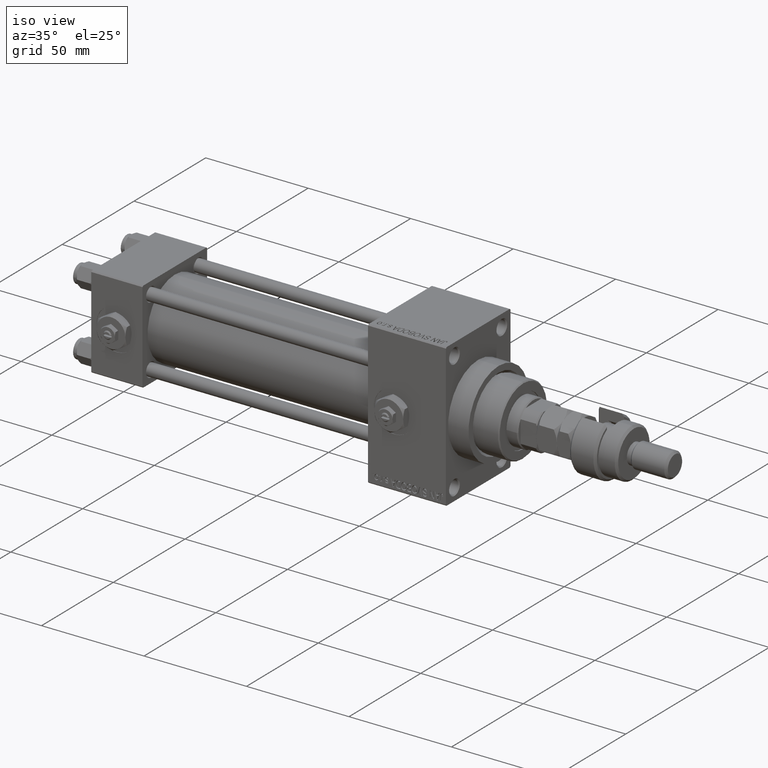
[diagram: clean part render]
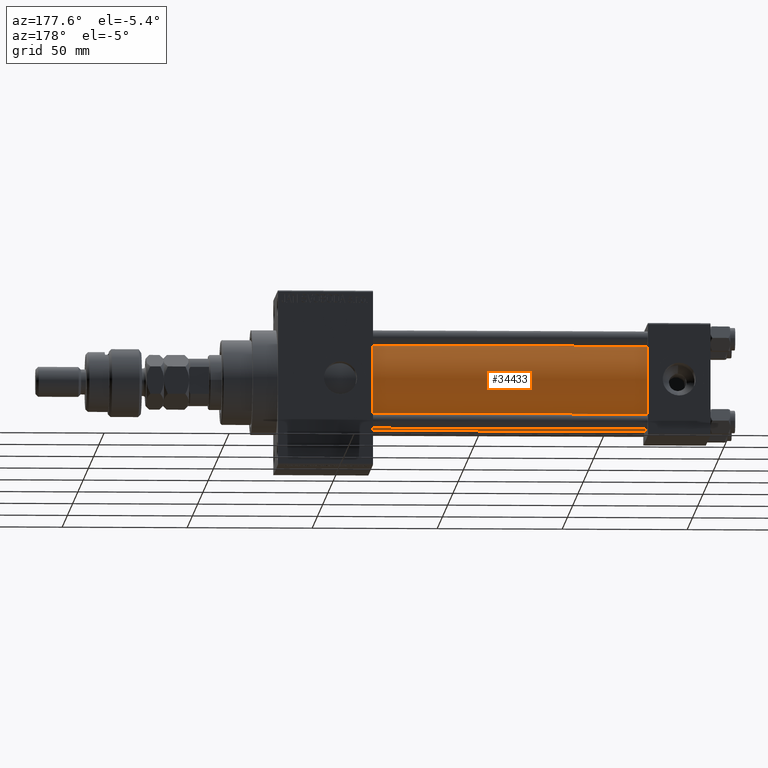
[diagram: tour spotlight — one face highlighted and labeled with its STEP entity id]
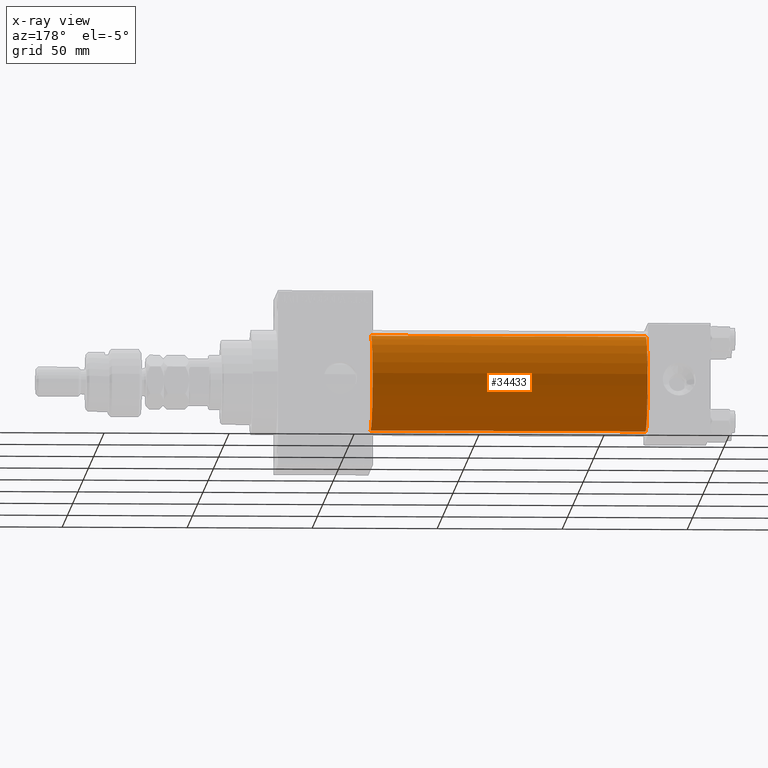
[diagram: x-ray of the same camera — body ghosted, this tour face saturated]
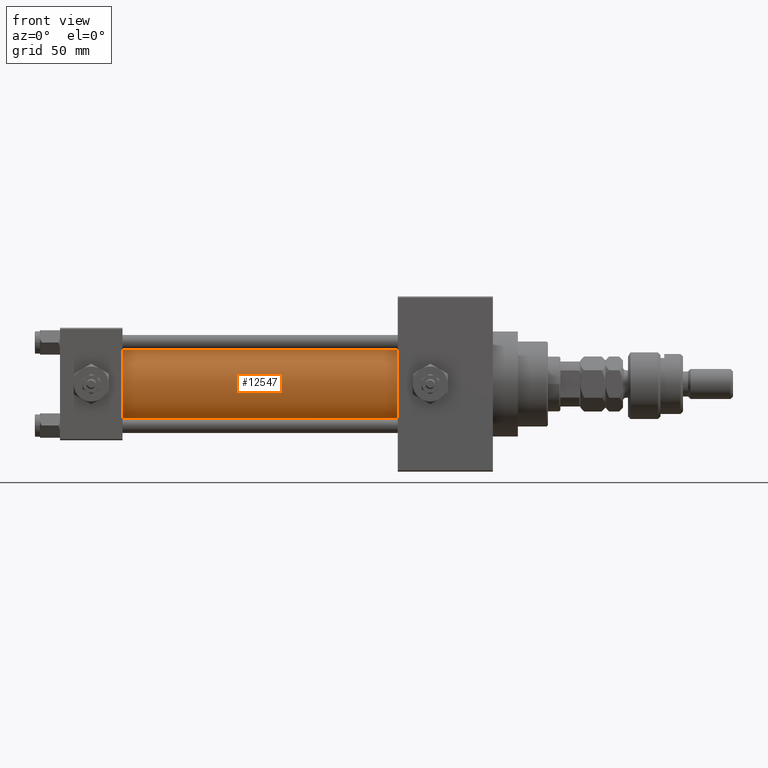
[diagram: tour spotlight — one face highlighted and labeled with its STEP entity id]
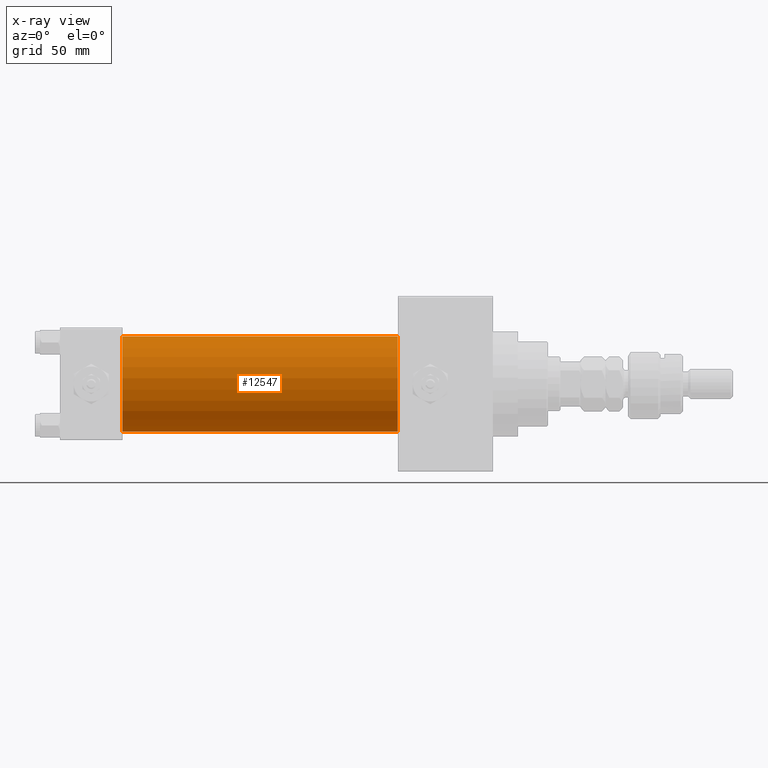
[diagram: x-ray of the same camera — body ghosted, this tour face saturated]
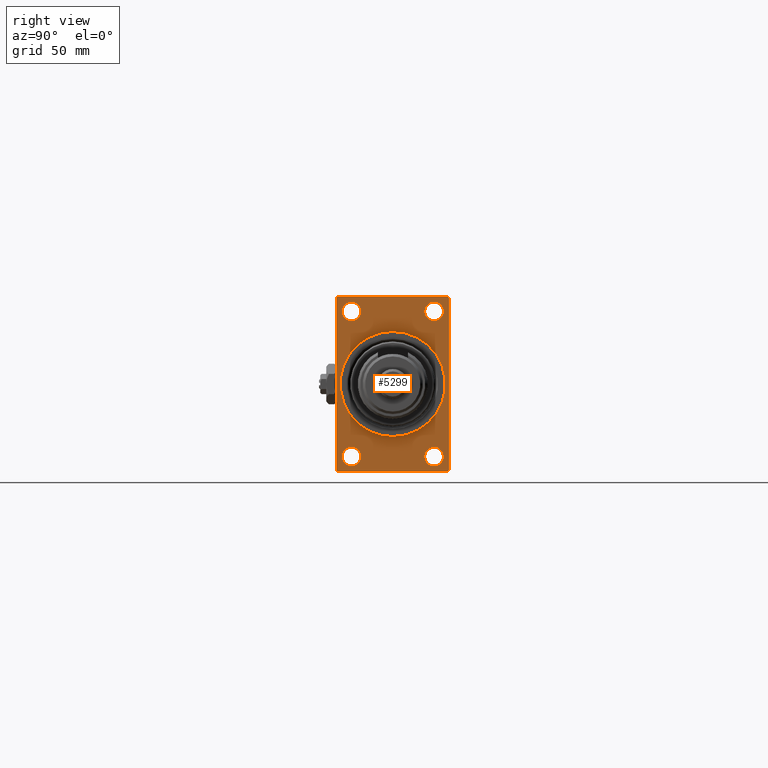
[diagram: tour spotlight — one face highlighted and labeled with its STEP entity id]
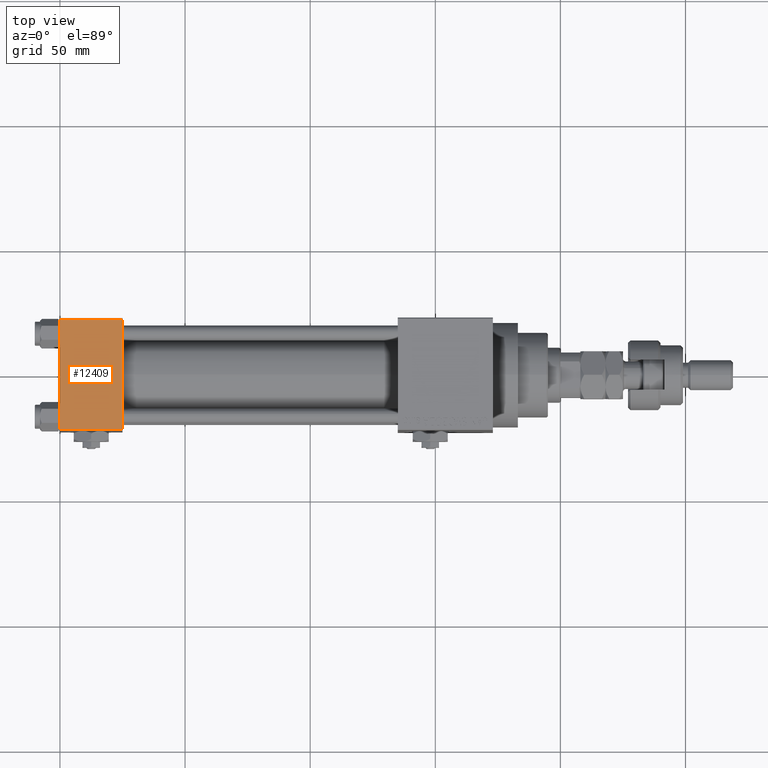
[diagram: tour spotlight — one face highlighted and labeled with its STEP entity id]
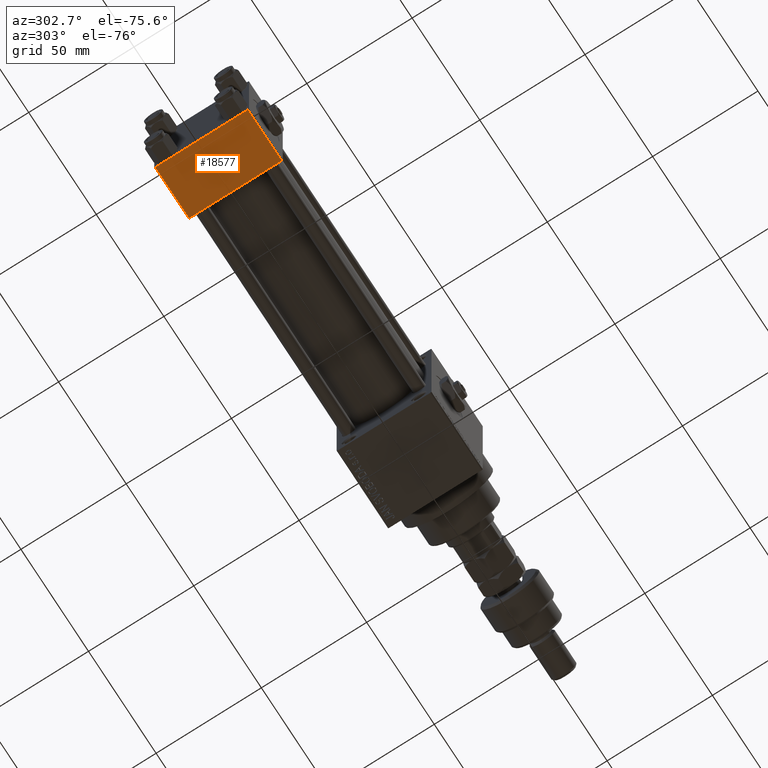
[diagram: tour spotlight — one face highlighted and labeled with its STEP entity id]
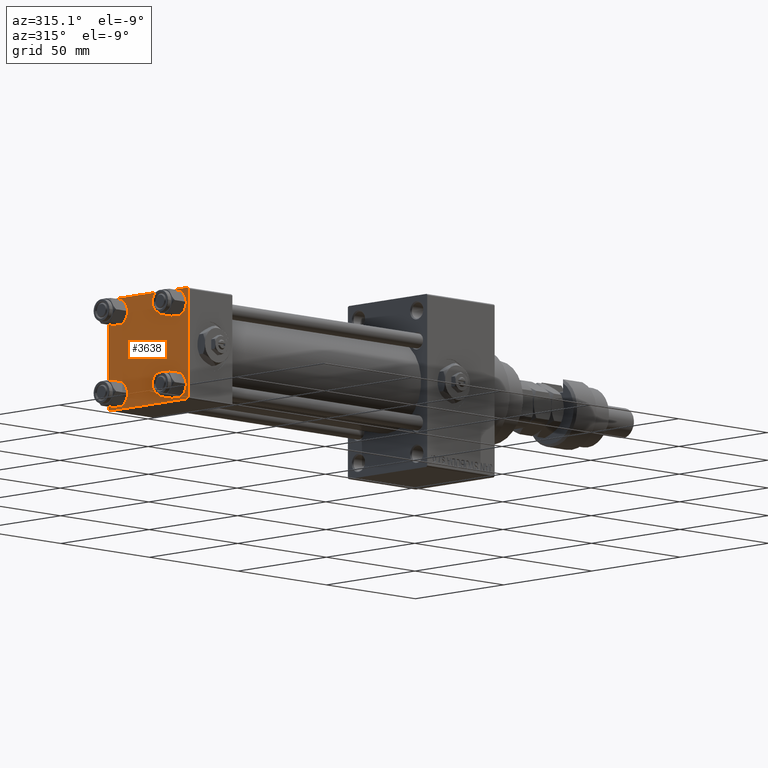
[diagram: tour spotlight — one face highlighted and labeled with its STEP entity id]
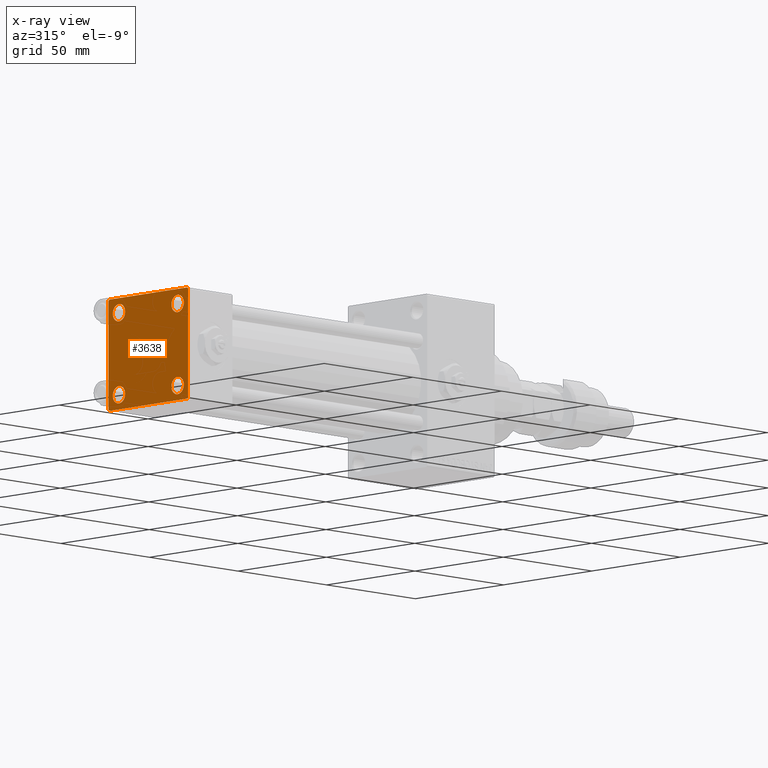
[diagram: x-ray of the same camera — body ghosted, this tour face saturated]
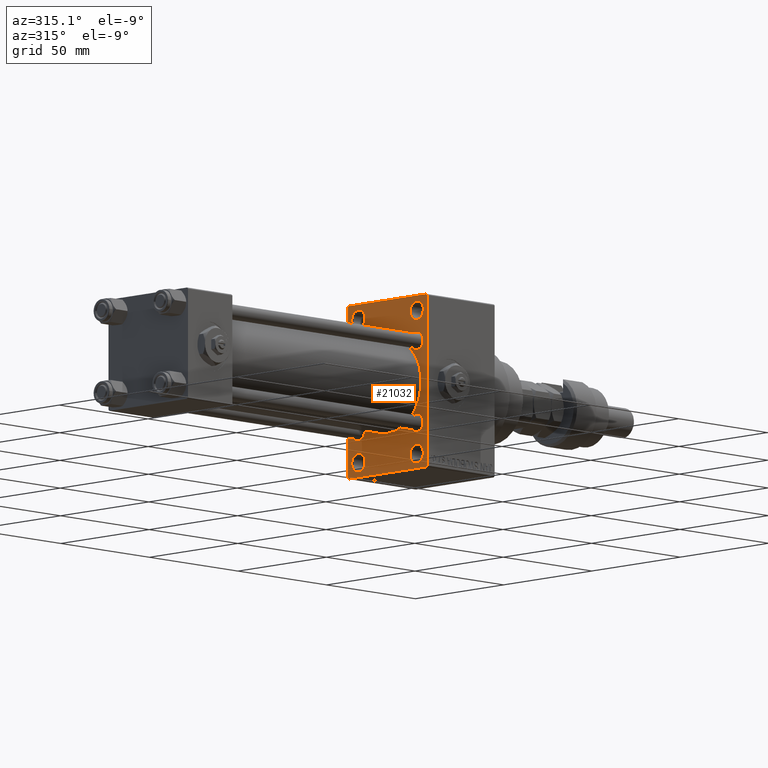
[diagram: tour spotlight — one face highlighted and labeled with its STEP entity id]
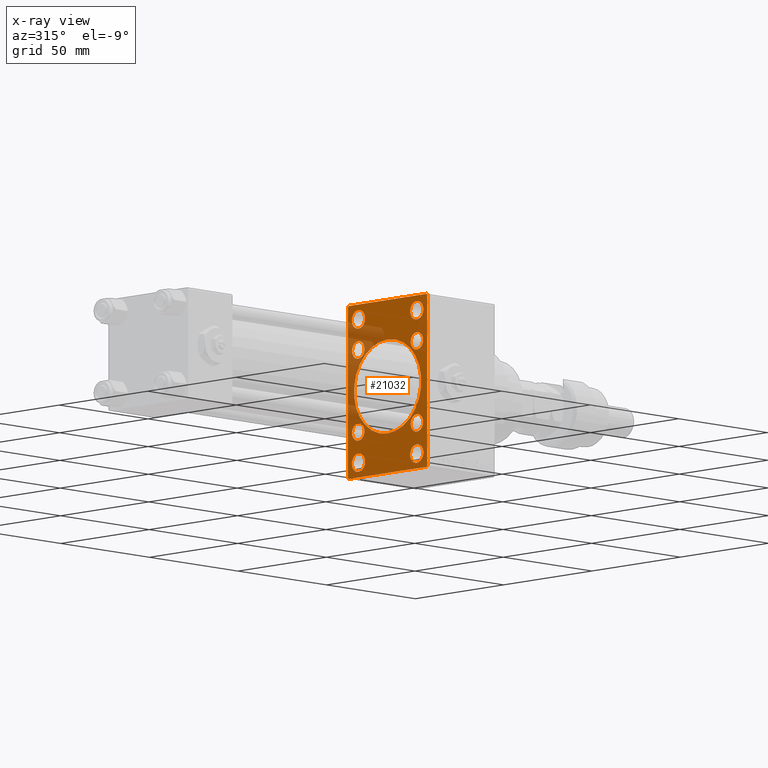
[diagram: x-ray of the same camera — body ghosted, this tour face saturated]
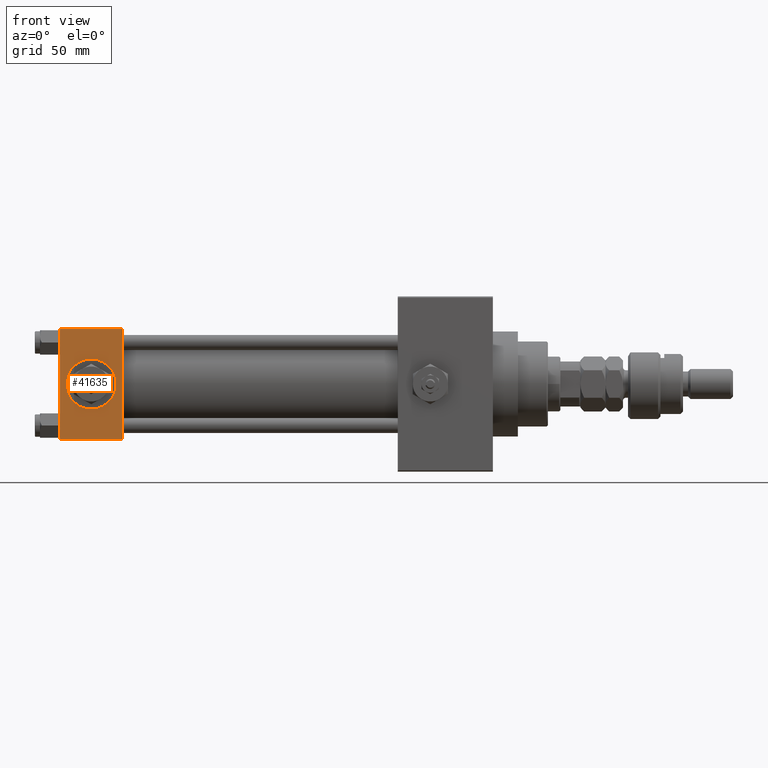
[diagram: tour spotlight — one face highlighted and labeled with its STEP entity id]
A machine part: a face-by-face anatomy tour. The part has 1289 B-rep faces; the first image is the clean iso view, then the 8 largest visible faces are spotlighted one at a time (largest first), each with its STEP entity span.

Face 1 — auxiliary view, entity #34433. An x-ray twin of the same camera follows (body ghosted, this face saturated) — the face is partly hidden behind the body. In plain terms, the highlighted cylindrical surface (partial cylindrical patch) has radius 19 mm, axis along (-1, -0, -0).
Definition (entity closure, byte-faithful):
#1672 = VECTOR ( 'NONE', #2613, 1000.000000000000000 ) ;
#2613 = DIRECTION ( 'NONE',  ( -1.000000000000000000, -0.000000000000000000, -0.000000000000000000 ) ) ;
#5079 = CIRCLE ( 'NONE', #16786, 19.00000000000000000 ) ;
#6226 = VERTEX_POINT ( 'NONE', #16311 ) ;
#6287 = CARTESIAN_POINT ( 'NONE',  ( 135.0000000000000000, -2.752562955852396712E-16, -19.00000000000000000 ) ) ;
#16311 = CARTESIAN_POINT ( 'NONE',  ( 135.0000000000000000, -2.602085213965210642E-15, 19.00000000000000000 ) ) ;
#16786 = AXIS2_PLACEMENT_3D ( 'NONE', #45557, #42674, #18754 ) ;
#18142 = EDGE_CURVE ( 'NONE', #6226, #47915, #43437, .T. ) ;
#18754 = DIRECTION ( 'NONE',  ( 0.000000000000000000, 0.000000000000000000, 1.000000000000000000 ) ) ;
#19107 = EDGE_CURVE ( 'NONE', #40309, #6226, #49322, .T. ) ;
#19530 = DIRECTION ( 'NONE',  ( -1.000000000000000000, -0.000000000000000000, -0.000000000000000000 ) ) ;
#19796 = EDGE_LOOP ( 'NONE', ( #32815, #41409, #50767, #35160 ) ) ;
#22062 = CARTESIAN_POINT ( 'NONE',  ( 135.0000000000000000, -2.602085213965210642E-15, 0.000000000000000000 ) ) ;
#22529 = CARTESIAN_POINT ( 'NONE',  ( 135.0000000000000000, -2.752562955852396712E-16, -19.00000000000000000 ) ) ;
#23487 = CARTESIAN_POINT ( 'NONE',  ( 135.0000000000000000, -2.602085213965210642E-15, 19.00000000000000000 ) ) ;
#25445 = EDGE_CURVE ( 'NONE', #40309, #45660, #26244, .T. ) ;
#26244 = LINE ( 'NONE', #6287, #1672 ) ;
#29950 = FACE_OUTER_BOUND ( 'NONE', #19796, .T. ) ;
#30005 = DIRECTION ( 'NONE',  ( 1.000000000000000000, 0.000000000000000000, 0.000000000000000000 ) ) ;
#30540 = CARTESIAN_POINT ( 'NONE',  ( 135.0000000000000000, -2.602085213965210642E-15, 0.000000000000000000 ) ) ;
#31729 = AXIS2_PLACEMENT_3D ( 'NONE', #30540, #30005, #42869 ) ;
#32815 = ORIENTED_EDGE ( 'NONE', *, *, #19107, .F. ) ;
#34319 = CARTESIAN_POINT ( 'NONE',  ( 24.99999999999999289, -2.752562955852396712E-16, -19.00000000000000000 ) ) ;
#34433 = ADVANCED_FACE ( 'NONE', ( #29950 ), #50161, .T. ) ;
#35160 = ORIENTED_EDGE ( 'NONE', *, *, #18142, .F. ) ;
#35861 = EDGE_CURVE ( 'NONE', #45660, #47915, #5079, .T. ) ;
#35872 = VECTOR ( 'NONE', #19530, 1000.000000000000000 ) ;
#38071 = DIRECTION ( 'NONE',  ( -1.000000000000000000, -0.000000000000000000, -0.000000000000000000 ) ) ;
#40270 = AXIS2_PLACEMENT_3D ( 'NONE', #22062, #38071, #50695 ) ;
#40309 = VERTEX_POINT ( 'NONE', #22529 ) ;
#41409 = ORIENTED_EDGE ( 'NONE', *, *, #25445, .T. ) ;
#42674 = DIRECTION ( 'NONE',  ( 1.000000000000000000, -0.000000000000000000, 0.000000000000000000 ) ) ;
#42869 = DIRECTION ( 'NONE',  ( 0.000000000000000000, 0.000000000000000000, -1.000000000000000000 ) ) ;
#43437 = LINE ( 'NONE', #23487, #35872 ) ;
#45557 = CARTESIAN_POINT ( 'NONE',  ( 24.99999999999999289, -2.602085213965210642E-15, 0.000000000000000000 ) ) ;
#45660 = VERTEX_POINT ( 'NONE', #34319 ) ;
#45774 = CARTESIAN_POINT ( 'NONE',  ( 24.99999999999999289, -2.602085213965210642E-15, 19.00000000000000000 ) ) ;
#47915 = VERTEX_POINT ( 'NONE', #45774 ) ;
#49322 = CIRCLE ( 'NONE', #31729, 19.00000000000000000 ) ;
#50161 = CYLINDRICAL_SURFACE ( 'NONE', #40270, 19.00000000000000000 ) ;
#50695 = DIRECTION ( 'NONE',  ( 0.000000000000000000, 0.000000000000000000, 1.000000000000000000 ) ) ;
#50767 = ORIENTED_EDGE ( 'NONE', *, *, #35861, .T. ) ;

Face 2 — front view, entity #12547. An x-ray twin of the same camera follows (body ghosted, this face saturated) — the face is partly hidden behind the body. In plain terms, the highlighted cylindrical surface (partial cylindrical patch) has radius 19 mm, axis along (-1, -0, -0).
Definition (entity closure, byte-faithful):
#382 = CIRCLE ( 'NONE', #7096, 19.00000000000000000 ) ;
#1672 = VECTOR ( 'NONE', #2613, 1000.000000000000000 ) ;
#2613 = DIRECTION ( 'NONE',  ( -1.000000000000000000, -0.000000000000000000, -0.000000000000000000 ) ) ;
#6226 = VERTEX_POINT ( 'NONE', #16311 ) ;
#6287 = CARTESIAN_POINT ( 'NONE',  ( 135.0000000000000000, -2.752562955852396712E-16, -19.00000000000000000 ) ) ;
#6600 = CYLINDRICAL_SURFACE ( 'NONE', #28955, 19.00000000000000000 ) ;
#7096 = AXIS2_PLACEMENT_3D ( 'NONE', #21492, #14123, #38018 ) ;
#7238 = ORIENTED_EDGE ( 'NONE', *, *, #25445, .F. ) ;
#8428 = DIRECTION ( 'NONE',  ( 0.000000000000000000, 0.000000000000000000, 1.000000000000000000 ) ) ;
#11064 = CARTESIAN_POINT ( 'NONE',  ( 135.0000000000000000, -2.602085213965210642E-15, 0.000000000000000000 ) ) ;
#12547 = ADVANCED_FACE ( 'NONE', ( #42580 ), #6600, .T. ) ;
#12738 = EDGE_LOOP ( 'NONE', ( #7238, #36563, #45200, #46952 ) ) ;
#14123 = DIRECTION ( 'NONE',  ( 1.000000000000000000, 0.000000000000000000, 0.000000000000000000 ) ) ;
#15014 = DIRECTION ( 'NONE',  ( 1.000000000000000000, -0.000000000000000000, 0.000000000000000000 ) ) ;
#15256 = DIRECTION ( 'NONE',  ( 0.000000000000000000, 0.000000000000000000, 1.000000000000000000 ) ) ;
#16311 = CARTESIAN_POINT ( 'NONE',  ( 135.0000000000000000, -2.602085213965210642E-15, 19.00000000000000000 ) ) ;
#18142 = EDGE_CURVE ( 'NONE', #6226, #47915, #43437, .T. ) ;
#19530 = DIRECTION ( 'NONE',  ( -1.000000000000000000, -0.000000000000000000, -0.000000000000000000 ) ) ;
#21492 = CARTESIAN_POINT ( 'NONE',  ( 135.0000000000000000, -2.602085213965210642E-15, 0.000000000000000000 ) ) ;
#22529 = CARTESIAN_POINT ( 'NONE',  ( 135.0000000000000000, -2.752562955852396712E-16, -19.00000000000000000 ) ) ;
#23059 = AXIS2_PLACEMENT_3D ( 'NONE', #34697, #15014, #8428 ) ;
#23487 = CARTESIAN_POINT ( 'NONE',  ( 135.0000000000000000, -2.602085213965210642E-15, 19.00000000000000000 ) ) ;
#24744 = CIRCLE ( 'NONE', #23059, 19.00000000000000000 ) ;
#25445 = EDGE_CURVE ( 'NONE', #40309, #45660, #26244, .T. ) ;
#26244 = LINE ( 'NONE', #6287, #1672 ) ;
#27091 = DIRECTION ( 'NONE',  ( -1.000000000000000000, -0.000000000000000000, -0.000000000000000000 ) ) ;
#28955 = AXIS2_PLACEMENT_3D ( 'NONE', #11064, #27091, #15256 ) ;
#34319 = CARTESIAN_POINT ( 'NONE',  ( 24.99999999999999289, -2.752562955852396712E-16, -19.00000000000000000 ) ) ;
#34697 = CARTESIAN_POINT ( 'NONE',  ( 24.99999999999999289, -2.602085213965210642E-15, 0.000000000000000000 ) ) ;
#35872 = VECTOR ( 'NONE', #19530, 1000.000000000000000 ) ;
#36563 = ORIENTED_EDGE ( 'NONE', *, *, #48214, .F. ) ;
#38018 = DIRECTION ( 'NONE',  ( 0.000000000000000000, 0.000000000000000000, -1.000000000000000000 ) ) ;
#40309 = VERTEX_POINT ( 'NONE', #22529 ) ;
#42580 = FACE_OUTER_BOUND ( 'NONE', #12738, .T. ) ;
#43437 = LINE ( 'NONE', #23487, #35872 ) ;
#45200 = ORIENTED_EDGE ( 'NONE', *, *, #18142, .T. ) ;
#45660 = VERTEX_POINT ( 'NONE', #34319 ) ;
#45774 = CARTESIAN_POINT ( 'NONE',  ( 24.99999999999999289, -2.602085213965210642E-15, 19.00000000000000000 ) ) ;
#46952 = ORIENTED_EDGE ( 'NONE', *, *, #51948, .T. ) ;
#47915 = VERTEX_POINT ( 'NONE', #45774 ) ;
#48214 = EDGE_CURVE ( 'NONE', #6226, #40309, #382, .T. ) ;
#51948 = EDGE_CURVE ( 'NONE', #47915, #45660, #24744, .T. ) ;

Face 3 — right view, entity #5299. In plain terms, the highlighted planar face has unit normal (-1, 0, 0).
Definition (entity closure, byte-faithful):
#174 = DIRECTION ( 'NONE',  ( 0.000000000000000000, -1.000000000000000000, 0.000000000000000000 ) ) ;
#206 = VERTEX_POINT ( 'NONE', #11395 ) ;
#269 = CIRCLE ( 'NONE', #15372, 3.750000000000166533 ) ;
#385 = CARTESIAN_POINT ( 'NONE',  ( 173.0000000000000284, -16.50000000000000000, 29.00000000000000711 ) ) ;
#523 = VERTEX_POINT ( 'NONE', #39678 ) ;
#614 = ORIENTED_EDGE ( 'NONE', *, *, #50535, .F. ) ;
#1352 = ORIENTED_EDGE ( 'NONE', *, *, #27456, .F. ) ;
#2271 = PLANE ( 'NONE',  #39671 ) ;
#2381 = CARTESIAN_POINT ( 'NONE',  ( 173.0000000000000284, -16.50000000000000000, -32.75000000000017053 ) ) ;
#2528 = CARTESIAN_POINT ( 'NONE',  ( 173.0000000000000284, 22.49999999999999645, -34.50000000000000000 ) ) ;
#2782 = CIRCLE ( 'NONE', #46406, 3.750000000000166533 ) ;
#3355 = ORIENTED_EDGE ( 'NONE', *, *, #13821, .T. ) ;
#3462 = DIRECTION ( 'NONE',  ( -1.000000000000000000, -0.000000000000000000, -0.000000000000000000 ) ) ;
#3914 = EDGE_LOOP ( 'NONE', ( #32806, #8766 ) ) ;
#4430 = DIRECTION ( 'NONE',  ( 0.000000000000000000, 0.000000000000000000, -1.000000000000000000 ) ) ;
#4983 = AXIS2_PLACEMENT_3D ( 'NONE', #14078, #46387, #5691 ) ;
#5007 = CARTESIAN_POINT ( 'NONE',  ( 173.0000000000000284, -22.00000000000000355, -35.00000000000000000 ) ) ;
#5299 = ADVANCED_FACE ( 'NONE', ( #50327, #11194, #51379, #10411, #27221, #39025 ), #2271, .F. ) ;
#5691 = DIRECTION ( 'NONE',  ( 0.000000000000000000, 0.000000000000000000, 1.000000000000000000 ) ) ;
#5766 = LINE ( 'NONE', #5007, #34200 ) ;
#5822 = VERTEX_POINT ( 'NONE', #27819 ) ;
#5961 = DIRECTION ( 'NONE',  ( -1.000000000000000000, -0.000000000000000000, -0.000000000000000000 ) ) ;
#5966 = CARTESIAN_POINT ( 'NONE',  ( 173.0000000000000284, 16.50000000000000000, 32.75000000000017764 ) ) ;
#6067 = DIRECTION ( 'NONE',  ( -0.000000000000000000, -0.7071067811865279218, -0.7071067811865671127 ) ) ;
#6856 = DIRECTION ( 'NONE',  ( 1.000000000000000000, 0.000000000000000000, 0.000000000000000000 ) ) ;
#7702 = DIRECTION ( 'NONE',  ( 0.000000000000000000, 0.000000000000000000, -1.000000000000000000 ) ) ;
#8026 = VECTOR ( 'NONE', #6067, 1000.000000000000000 ) ;
#8243 = ORIENTED_EDGE ( 'NONE', *, *, #25962, .F. ) ;
#8424 = CARTESIAN_POINT ( 'NONE',  ( 173.0000000000000284, 16.50000000000000000, -28.99999999999999289 ) ) ;
#8766 = ORIENTED_EDGE ( 'NONE', *, *, #9245, .T. ) ;
#9024 = CARTESIAN_POINT ( 'NONE',  ( 173.0000000000000284, -16.50000000000000000, 29.00000000000000711 ) ) ;
#9148 = EDGE_CURVE ( 'NONE', #26184, #41879, #269, .T. ) ;
#9173 = CIRCLE ( 'NONE', #4983, 3.750000000000169642 ) ;
#9245 = EDGE_CURVE ( 'NONE', #50178, #16926, #2782, .T. ) ;
#9731 = VECTOR ( 'NONE', #174, 1000.000000000000000 ) ;
#9891 = DIRECTION ( 'NONE',  ( 0.000000000000000000, 0.000000000000000000, 1.000000000000000000 ) ) ;
#10411 = FACE_BOUND ( 'NONE', #26918, .T. ) ;
#10528 = CARTESIAN_POINT ( 'NONE',  ( 173.0000000000000284, -22.50000000000000355, 34.50000000000000000 ) ) ;
#10717 = CIRCLE ( 'NONE', #40065, 3.750000000000166533 ) ;
#11187 = ORIENTED_EDGE ( 'NONE', *, *, #22346, .T. ) ;
#11194 = FACE_BOUND ( 'NONE', #3914, .T. ) ;
#11395 = CARTESIAN_POINT ( 'NONE',  ( 173.0000000000000284, 16.50000000000000000, -32.75000000000017053 ) ) ;
#11468 = LINE ( 'NONE', #46659, #48622 ) ;
#11580 = DIRECTION ( 'NONE',  ( 0.000000000000000000, 0.000000000000000000, -1.000000000000000000 ) ) ;
#12339 = DIRECTION ( 'NONE',  ( 0.000000000000000000, 0.000000000000000000, 1.000000000000000000 ) ) ;
#12394 = DIRECTION ( 'NONE',  ( 1.000000000000000000, 0.000000000000000000, 0.000000000000000000 ) ) ;
#13042 = CIRCLE ( 'NONE', #19760, 3.750000000000166533 ) ;
#13629 = DIRECTION ( 'NONE',  ( 0.000000000000000000, 0.7071067811865474617, -0.7071067811865474617 ) ) ;
#13821 = EDGE_CURVE ( 'NONE', #206, #22614, #13042, .T. ) ;
#14078 = CARTESIAN_POINT ( 'NONE',  ( 173.0000000000000284, 16.50000000000000000, 29.00000000000000355 ) ) ;
#14926 = VERTEX_POINT ( 'NONE', #22452 ) ;
#15265 = EDGE_CURVE ( 'NONE', #33520, #24368, #48492, .T. ) ;
#15362 = DIRECTION ( 'NONE',  ( 0.000000000000000000, 0.000000000000000000, 1.000000000000000000 ) ) ;
#15372 = AXIS2_PLACEMENT_3D ( 'NONE', #9024, #37101, #49193 ) ;
#15739 = VECTOR ( 'NONE', #4430, 1000.000000000000000 ) ;
#16390 = DIRECTION ( 'NONE',  ( -1.000000000000000000, -0.000000000000000000, -0.000000000000000000 ) ) ;
#16926 = VERTEX_POINT ( 'NONE', #2381 ) ;
#17276 = CARTESIAN_POINT ( 'NONE',  ( 173.0000000000000284, 21.99999999999999645, 35.00000000000000000 ) ) ;
#17616 = AXIS2_PLACEMENT_3D ( 'NONE', #39728, #12394, #7702 ) ;
#17714 = DIRECTION ( 'NONE',  ( 0.000000000000000000, 0.000000000000000000, 1.000000000000000000 ) ) ;
#17944 = ORIENTED_EDGE ( 'NONE', *, *, #21631, .T. ) ;
#18268 = DIRECTION ( 'NONE',  ( -1.000000000000000000, 0.000000000000000000, -0.000000000000000000 ) ) ;
#18457 = EDGE_CURVE ( 'NONE', #22614, #206, #10717, .T. ) ;
#18799 = AXIS2_PLACEMENT_3D ( 'NONE', #48519, #6856, #11580 ) ;
#18802 = CIRCLE ( 'NONE', #43158, 3.750000000000166533 ) ;
#18940 = CARTESIAN_POINT ( 'NONE',  ( 173.0000000000000284, 22.49999999999999645, -34.50000000000000000 ) ) ;
#19056 = CARTESIAN_POINT ( 'NONE',  ( 173.0000000000000284, 0.000000000000000000, 0.000000000000000000 ) ) ;
#19514 = LINE ( 'NONE', #36299, #25265 ) ;
#19760 = AXIS2_PLACEMENT_3D ( 'NONE', #45867, #33020, #9891 ) ;
#19773 = DIRECTION ( 'NONE',  ( 0.000000000000000000, 0.000000000000000000, -1.000000000000000000 ) ) ;
#20716 = CARTESIAN_POINT ( 'NONE',  ( 173.0000000000000284, -16.50000000000000000, -28.99999999999999289 ) ) ;
#21161 = VERTEX_POINT ( 'NONE', #18940 ) ;
#21262 = VERTEX_POINT ( 'NONE', #32579 ) ;
#21631 = EDGE_CURVE ( 'NONE', #5822, #523, #47758, .T. ) ;
#22151 = CIRCLE ( 'NONE', #30534, 3.750000000000166533 ) ;
#22346 = EDGE_CURVE ( 'NONE', #523, #34105, #5766, .T. ) ;
#22452 = CARTESIAN_POINT ( 'NONE',  ( 173.0000000000000284, 22.49999999999999645, 34.50000000000000000 ) ) ;
#22480 = EDGE_LOOP ( 'NONE', ( #3355, #25457 ) ) ;
#22544 = VERTEX_POINT ( 'NONE', #27045 ) ;
#22614 = VERTEX_POINT ( 'NONE', #44601 ) ;
#23270 = VERTEX_POINT ( 'NONE', #28477 ) ;
#23328 = EDGE_CURVE ( 'NONE', #21262, #38618, #28421, .T. ) ;
#24368 = VERTEX_POINT ( 'NONE', #32825 ) ;
#24616 = EDGE_LOOP ( 'NONE', ( #44388, #25232 ) ) ;
#24796 = EDGE_CURVE ( 'NONE', #38618, #21262, #9173, .T. ) ;
#25232 = ORIENTED_EDGE ( 'NONE', *, *, #47764, .T. ) ;
#25265 = VECTOR ( 'NONE', #19773, 1000.000000000000000 ) ;
#25355 = DIRECTION ( 'NONE',  ( -1.000000000000000000, -0.000000000000000000, -0.000000000000000000 ) ) ;
#25457 = ORIENTED_EDGE ( 'NONE', *, *, #18457, .T. ) ;
#25958 = LINE ( 'NONE', #17276, #27765 ) ;
#25962 = EDGE_CURVE ( 'NONE', #23270, #34105, #11468, .T. ) ;
#26184 = VERTEX_POINT ( 'NONE', #42926 ) ;
#26260 = CARTESIAN_POINT ( 'NONE',  ( 173.0000000000000284, 21.99999999999999645, 35.00000000000000000 ) ) ;
#26443 = ORIENTED_EDGE ( 'NONE', *, *, #50396, .T. ) ;
#26918 = EDGE_LOOP ( 'NONE', ( #47470, #39041 ) ) ;
#27045 = CARTESIAN_POINT ( 'NONE',  ( 173.0000000000000284, 2.571758278209441661E-15, -21.00000000000000000 ) ) ;
#27221 = FACE_BOUND ( 'NONE', #37765, .T. ) ;
#27456 = EDGE_CURVE ( 'NONE', #37438, #22544, #29384, .T. ) ;
#27588 = DIRECTION ( 'NONE',  ( 0.000000000000000000, 0.000000000000000000, 1.000000000000000000 ) ) ;
#27765 = VECTOR ( 'NONE', #46170, 1000.000000000000114 ) ;
#27819 = CARTESIAN_POINT ( 'NONE',  ( 173.0000000000000284, -22.50000000000000355, 34.50000000000000000 ) ) ;
#28068 = EDGE_CURVE ( 'NONE', #23270, #21161, #50847, .T. ) ;
#28421 = CIRCLE ( 'NONE', #30936, 3.750000000000169642 ) ;
#28477 = CARTESIAN_POINT ( 'NONE',  ( 173.0000000000000284, 22.00000000000002132, -35.00000000000000000 ) ) ;
#29047 = CARTESIAN_POINT ( 'NONE',  ( 173.0000000000000284, 22.49999999999999645, 35.00000000000000000 ) ) ;
#29075 = CARTESIAN_POINT ( 'NONE',  ( 173.0000000000000284, -16.50000000000000000, 32.75000000000017764 ) ) ;
#29384 = CIRCLE ( 'NONE', #17616, 21.00000000000000000 ) ;
#29953 = CARTESIAN_POINT ( 'NONE',  ( 173.0000000000000284, 0.000000000000000000, 21.00000000000000000 ) ) ;
#30047 = ORIENTED_EDGE ( 'NONE', *, *, #41411, .F. ) ;
#30534 = AXIS2_PLACEMENT_3D ( 'NONE', #20716, #40415, #27588 ) ;
#30917 = DIRECTION ( 'NONE',  ( 0.000000000000000000, -1.000000000000000000, 0.000000000000000000 ) ) ;
#30936 = AXIS2_PLACEMENT_3D ( 'NONE', #36240, #3462, #12339 ) ;
#32579 = CARTESIAN_POINT ( 'NONE',  ( 173.0000000000000284, 16.50000000000000000, 25.24999999999983658 ) ) ;
#32583 = DIRECTION ( 'NONE',  ( 0.000000000000000000, 0.000000000000000000, 1.000000000000000000 ) ) ;
#32806 = ORIENTED_EDGE ( 'NONE', *, *, #47165, .T. ) ;
#32825 = CARTESIAN_POINT ( 'NONE',  ( 173.0000000000000284, -22.00000000000001776, 35.00000000000000000 ) ) ;
#33020 = DIRECTION ( 'NONE',  ( -1.000000000000000000, -0.000000000000000000, -0.000000000000000000 ) ) ;
#33520 = VERTEX_POINT ( 'NONE', #26260 ) ;
#33736 = CARTESIAN_POINT ( 'NONE',  ( 173.0000000000000284, -16.50000000000000000, -28.99999999999999289 ) ) ;
#33898 = CIRCLE ( 'NONE', #18799, 21.00000000000000000 ) ;
#34042 = ORIENTED_EDGE ( 'NONE', *, *, #28068, .T. ) ;
#34105 = VERTEX_POINT ( 'NONE', #42092 ) ;
#34200 = VECTOR ( 'NONE', #13629, 1000.000000000000114 ) ;
#36240 = CARTESIAN_POINT ( 'NONE',  ( 173.0000000000000284, 16.50000000000000000, 29.00000000000000355 ) ) ;
#36299 = CARTESIAN_POINT ( 'NONE',  ( 173.0000000000000284, 22.49999999999999645, 35.00000000000000000 ) ) ;
#37101 = DIRECTION ( 'NONE',  ( -1.000000000000000000, -0.000000000000000000, -0.000000000000000000 ) ) ;
#37438 = VERTEX_POINT ( 'NONE', #29953 ) ;
#37765 = EDGE_LOOP ( 'NONE', ( #1352, #614 ) ) ;
#38618 = VERTEX_POINT ( 'NONE', #5966 ) ;
#38760 = DIRECTION ( 'NONE',  ( -0.000000000000000000, 0.000000000000000000, 1.000000000000000000 ) ) ;
#39025 = FACE_OUTER_BOUND ( 'NONE', #44063, .T. ) ;
#39041 = ORIENTED_EDGE ( 'NONE', *, *, #24796, .T. ) ;
#39363 = CARTESIAN_POINT ( 'NONE',  ( 173.0000000000000284, -22.50000000000000355, 35.00000000000000000 ) ) ;
#39671 = AXIS2_PLACEMENT_3D ( 'NONE', #19056, #18268, #38760 ) ;
#39678 = CARTESIAN_POINT ( 'NONE',  ( 173.0000000000000284, -22.50000000000000355, -34.50000000000000000 ) ) ;
#39728 = CARTESIAN_POINT ( 'NONE',  ( 173.0000000000000284, 0.000000000000000000, 0.000000000000000000 ) ) ;
#40065 = AXIS2_PLACEMENT_3D ( 'NONE', #8424, #5961, #32583 ) ;
#40415 = DIRECTION ( 'NONE',  ( -1.000000000000000000, -0.000000000000000000, -0.000000000000000000 ) ) ;
#40621 = EDGE_CURVE ( 'NONE', #14926, #33520, #25958, .T. ) ;
#41411 = EDGE_CURVE ( 'NONE', #14926, #21161, #19514, .T. ) ;
#41879 = VERTEX_POINT ( 'NONE', #29075 ) ;
#42092 = CARTESIAN_POINT ( 'NONE',  ( 173.0000000000000284, -21.99999999999998934, -35.00000000000000000 ) ) ;
#42441 = DIRECTION ( 'NONE',  ( -0.000000000000000000, 0.7071067811865279218, 0.7071067811865671127 ) ) ;
#42926 = CARTESIAN_POINT ( 'NONE',  ( 173.0000000000000284, -16.50000000000000000, 25.24999999999984368 ) ) ;
#42941 = VECTOR ( 'NONE', #42441, 1000.000000000000000 ) ;
#43158 = AXIS2_PLACEMENT_3D ( 'NONE', #385, #16390, #15362 ) ;
#44063 = EDGE_LOOP ( 'NONE', ( #17944, #11187, #8243, #34042, #30047, #45874, #51689, #26443 ) ) ;
#44388 = ORIENTED_EDGE ( 'NONE', *, *, #9148, .T. ) ;
#44601 = CARTESIAN_POINT ( 'NONE',  ( 173.0000000000000284, 16.50000000000000000, -25.24999999999982592 ) ) ;
#45867 = CARTESIAN_POINT ( 'NONE',  ( 173.0000000000000284, 16.50000000000000000, -28.99999999999999289 ) ) ;
#45874 = ORIENTED_EDGE ( 'NONE', *, *, #40621, .T. ) ;
#46039 = CARTESIAN_POINT ( 'NONE',  ( 173.0000000000000284, -16.50000000000000000, -25.24999999999982592 ) ) ;
#46170 = DIRECTION ( 'NONE',  ( 0.000000000000000000, -0.7071067811865474617, 0.7071067811865474617 ) ) ;
#46387 = DIRECTION ( 'NONE',  ( -1.000000000000000000, -0.000000000000000000, -0.000000000000000000 ) ) ;
#46406 = AXIS2_PLACEMENT_3D ( 'NONE', #33736, #25355, #17714 ) ;
#46509 = LINE ( 'NONE', #10528, #8026 ) ;
#46659 = CARTESIAN_POINT ( 'NONE',  ( 173.0000000000000284, 22.49999999999999645, -35.00000000000000000 ) ) ;
#47165 = EDGE_CURVE ( 'NONE', #16926, #50178, #22151, .T. ) ;
#47470 = ORIENTED_EDGE ( 'NONE', *, *, #23328, .T. ) ;
#47758 = LINE ( 'NONE', #39363, #15739 ) ;
#47764 = EDGE_CURVE ( 'NONE', #41879, #26184, #18802, .T. ) ;
#48492 = LINE ( 'NONE', #29047, #9731 ) ;
#48519 = CARTESIAN_POINT ( 'NONE',  ( 173.0000000000000284, 0.000000000000000000, 0.000000000000000000 ) ) ;
#48622 = VECTOR ( 'NONE', #30917, 1000.000000000000000 ) ;
#49193 = DIRECTION ( 'NONE',  ( 0.000000000000000000, 0.000000000000000000, 1.000000000000000000 ) ) ;
#50178 = VERTEX_POINT ( 'NONE', #46039 ) ;
#50327 = FACE_BOUND ( 'NONE', #24616, .T. ) ;
#50396 = EDGE_CURVE ( 'NONE', #24368, #5822, #46509, .T. ) ;
#50535 = EDGE_CURVE ( 'NONE', #22544, #37438, #33898, .T. ) ;
#50847 = LINE ( 'NONE', #2528, #42941 ) ;
#51379 = FACE_BOUND ( 'NONE', #22480, .T. ) ;
#51689 = ORIENTED_EDGE ( 'NONE', *, *, #15265, .T. ) ;

Face 4 — top view, entity #12409. In plain terms, the highlighted planar face has unit normal (0, 0, -1).
Definition (entity closure, byte-faithful):
#321 = ORIENTED_EDGE ( 'NONE', *, *, #27863, .T. ) ;
#672 = VERTEX_POINT ( 'NONE', #24698 ) ;
#1844 = DIRECTION ( 'NONE',  ( 0.000000000000000000, -1.000000000000000000, -7.709882115452476934E-17 ) ) ;
#3459 = PLANE ( 'NONE',  #3813 ) ;
#3813 = AXIS2_PLACEMENT_3D ( 'NONE', #14738, #38627, #7127 ) ;
#4219 = ORIENTED_EDGE ( 'NONE', *, *, #46490, .T. ) ;
#6274 = EDGE_CURVE ( 'NONE', #45655, #672, #10506, .T. ) ;
#7127 = DIRECTION ( 'NONE',  ( 0.000000000000000000, 1.000000000000000000, 7.709882115452476934E-17 ) ) ;
#10506 = LINE ( 'NONE', #46215, #29616 ) ;
#12409 = ADVANCED_FACE ( 'NONE', ( #27357 ), #3459, .F. ) ;
#13843 = CARTESIAN_POINT ( 'NONE',  ( 0.000000000000000000, 22.50000000000000000, 22.50000000000000355 ) ) ;
#14011 = VECTOR ( 'NONE', #31874, 1000.000000000000000 ) ;
#14738 = CARTESIAN_POINT ( 'NONE',  ( 25.00000000000000000, 22.50000000000000000, 22.50000000000000355 ) ) ;
#17483 = ORIENTED_EDGE ( 'NONE', *, *, #28487, .T. ) ;
#17729 = LINE ( 'NONE', #46108, #18589 ) ;
#18589 = VECTOR ( 'NONE', #29846, 1000.000000000000000 ) ;
#20554 = LINE ( 'NONE', #28443, #14011 ) ;
#24698 = CARTESIAN_POINT ( 'NONE',  ( 25.00000000000000000, -21.99999999999997868, 22.50000000000000000 ) ) ;
#27159 = VECTOR ( 'NONE', #49318, 1000.000000000000000 ) ;
#27357 = FACE_OUTER_BOUND ( 'NONE', #38102, .T. ) ;
#27863 = EDGE_CURVE ( 'NONE', #44443, #672, #17729, .T. ) ;
#28443 = CARTESIAN_POINT ( 'NONE',  ( 0.000000000000000000, 21.99999999999999289, 22.50000000000000355 ) ) ;
#28487 = EDGE_CURVE ( 'NONE', #45655, #34098, #20554, .T. ) ;
#28891 = ORIENTED_EDGE ( 'NONE', *, *, #6274, .F. ) ;
#29616 = VECTOR ( 'NONE', #1844, 1000.000000000000000 ) ;
#29846 = DIRECTION ( 'NONE',  ( 1.000000000000000000, 0.000000000000000000, 0.000000000000000000 ) ) ;
#31874 = DIRECTION ( 'NONE',  ( -1.000000000000000000, 0.000000000000000000, 0.000000000000000000 ) ) ;
#33292 = LINE ( 'NONE', #13843, #27159 ) ;
#34098 = VERTEX_POINT ( 'NONE', #41828 ) ;
#38102 = EDGE_LOOP ( 'NONE', ( #4219, #321, #28891, #17483 ) ) ;
#38627 = DIRECTION ( 'NONE',  ( 0.000000000000000000, 7.709882115452476934E-17, -1.000000000000000000 ) ) ;
#41828 = CARTESIAN_POINT ( 'NONE',  ( 0.000000000000000000, 21.99999999999999289, 22.50000000000000355 ) ) ;
#42742 = CARTESIAN_POINT ( 'NONE',  ( 25.00000000000000000, 21.99999999999999289, 22.50000000000000355 ) ) ;
#44433 = CARTESIAN_POINT ( 'NONE',  ( 0.000000000000000000, -21.99999999999997868, 22.50000000000000000 ) ) ;
#44443 = VERTEX_POINT ( 'NONE', #44433 ) ;
#45655 = VERTEX_POINT ( 'NONE', #42742 ) ;
#46108 = CARTESIAN_POINT ( 'NONE',  ( 25.00000000000000000, -21.99999999999999289, 22.50000000000000000 ) ) ;
#46215 = CARTESIAN_POINT ( 'NONE',  ( 25.00000000000000000, 22.50000000000000000, 22.50000000000000355 ) ) ;
#46490 = EDGE_CURVE ( 'NONE', #34098, #44443, #33292, .T. ) ;
#49318 = DIRECTION ( 'NONE',  ( 0.000000000000000000, -1.000000000000000000, -7.709882115452476934E-17 ) ) ;

Face 5 — auxiliary view, entity #18577. In plain terms, the highlighted planar face has unit normal (0, 0, -1).
Definition (entity closure, byte-faithful):
#1662 = VERTEX_POINT ( 'NONE', #6814 ) ;
#2209 = EDGE_LOOP ( 'NONE', ( #39515, #16430, #30602, #36873 ) ) ;
#3040 = LINE ( 'NONE', #47142, #49077 ) ;
#4055 = CARTESIAN_POINT ( 'NONE',  ( 0.000000000000000000, -21.99999999999998579, -22.50000000000000711 ) ) ;
#5203 = DIRECTION ( 'NONE',  ( 1.000000000000000000, 0.000000000000000000, 0.000000000000000000 ) ) ;
#6814 = CARTESIAN_POINT ( 'NONE',  ( 0.000000000000000000, -21.99999999999997158, -22.50000000000000711 ) ) ;
#8556 = CARTESIAN_POINT ( 'NONE',  ( 25.00000000000000000, 22.50000000000000000, -22.49999999999999645 ) ) ;
#11692 = DIRECTION ( 'NONE',  ( 0.000000000000000000, -1.000000000000000000, -2.312964634635742957E-16 ) ) ;
#15152 = CARTESIAN_POINT ( 'NONE',  ( 25.00000000000000000, 22.50000000000000000, -22.49999999999999645 ) ) ;
#15658 = DIRECTION ( 'NONE',  ( 0.000000000000000000, 1.000000000000000000, 2.312964634635742957E-16 ) ) ;
#16430 = ORIENTED_EDGE ( 'NONE', *, *, #36446, .T. ) ;
#18577 = ADVANCED_FACE ( 'NONE', ( #20631 ), #40070, .T. ) ;
#18840 = EDGE_CURVE ( 'NONE', #23716, #1662, #24011, .T. ) ;
#19353 = VERTEX_POINT ( 'NONE', #50944 ) ;
#19540 = DIRECTION ( 'NONE',  ( -1.000000000000000000, 0.000000000000000000, 0.000000000000000000 ) ) ;
#20631 = FACE_OUTER_BOUND ( 'NONE', #2209, .T. ) ;
#23716 = VERTEX_POINT ( 'NONE', #24621 ) ;
#24011 = LINE ( 'NONE', #4055, #41785 ) ;
#24621 = CARTESIAN_POINT ( 'NONE',  ( 25.00000000000000000, -21.99999999999997158, -22.50000000000000711 ) ) ;
#27250 = LINE ( 'NONE', #15152, #32673 ) ;
#29366 = LINE ( 'NONE', #45370, #38615 ) ;
#30602 = ORIENTED_EDGE ( 'NONE', *, *, #33941, .T. ) ;
#32673 = VECTOR ( 'NONE', #39568, 1000.000000000000000 ) ;
#33941 = EDGE_CURVE ( 'NONE', #50139, #23716, #27250, .T. ) ;
#36446 = EDGE_CURVE ( 'NONE', #19353, #50139, #29366, .T. ) ;
#36873 = ORIENTED_EDGE ( 'NONE', *, *, #18840, .T. ) ;
#37533 = AXIS2_PLACEMENT_3D ( 'NONE', #8556, #47695, #15658 ) ;
#38615 = VECTOR ( 'NONE', #5203, 1000.000000000000000 ) ;
#39515 = ORIENTED_EDGE ( 'NONE', *, *, #48957, .F. ) ;
#39568 = DIRECTION ( 'NONE',  ( 0.000000000000000000, -1.000000000000000000, -2.312964634635742957E-16 ) ) ;
#40070 = PLANE ( 'NONE',  #37533 ) ;
#41785 = VECTOR ( 'NONE', #19540, 1000.000000000000000 ) ;
#45370 = CARTESIAN_POINT ( 'NONE',  ( 25.00000000000000000, 21.99999999999999289, -22.49999999999999645 ) ) ;
#47142 = CARTESIAN_POINT ( 'NONE',  ( 0.000000000000000000, 22.50000000000000000, -22.49999999999999645 ) ) ;
#47695 = DIRECTION ( 'NONE',  ( 0.000000000000000000, 2.312964634635742957E-16, -1.000000000000000000 ) ) ;
#48709 = CARTESIAN_POINT ( 'NONE',  ( 25.00000000000000000, 21.99999999999999289, -22.49999999999999645 ) ) ;
#48957 = EDGE_CURVE ( 'NONE', #19353, #1662, #3040, .T. ) ;
#49077 = VECTOR ( 'NONE', #11692, 1000.000000000000000 ) ;
#50139 = VERTEX_POINT ( 'NONE', #48709 ) ;
#50944 = CARTESIAN_POINT ( 'NONE',  ( 0.000000000000000000, 21.99999999999999289, -22.49999999999999645 ) ) ;

Face 6 — auxiliary view, entity #3638. An x-ray twin of the same camera follows (body ghosted, this face saturated) — the face is partly hidden behind the body. In plain terms, the highlighted planar face has unit normal (-1, 0, 0).
Definition (entity closure, byte-faithful):
#185 = ORIENTED_EDGE ( 'NONE', *, *, #23942, .T. ) ;
#792 = ORIENTED_EDGE ( 'NONE', *, *, #48970, .T. ) ;
#1662 = VERTEX_POINT ( 'NONE', #6814 ) ;
#1868 = PLANE ( 'NONE',  #26210 ) ;
#1962 = CARTESIAN_POINT ( 'NONE',  ( 0.000000000000000000, 22.50000000000000000, 22.50000000000000355 ) ) ;
#2136 = FACE_BOUND ( 'NONE', #38361, .T. ) ;
#3040 = LINE ( 'NONE', #47142, #49077 ) ;
#3052 = CARTESIAN_POINT ( 'NONE',  ( 0.000000000000000000, -16.59999999999999076, -16.60000000000000853 ) ) ;
#3261 = EDGE_CURVE ( 'NONE', #47679, #33567, #31398, .T. ) ;
#3367 = ORIENTED_EDGE ( 'NONE', *, *, #50063, .T. ) ;
#3638 = ADVANCED_FACE ( 'NONE', ( #2136, #29454, #42044, #9488, #45457 ), #1868, .T. ) ;
#4128 = AXIS2_PLACEMENT_3D ( 'NONE', #31876, #16086, #8216 ) ;
#4608 = CARTESIAN_POINT ( 'NONE',  ( 0.000000000000000000, 16.59999999999999787, -20.10000000000000142 ) ) ;
#4624 = AXIS2_PLACEMENT_3D ( 'NONE', #40031, #43979, #30878 ) ;
#4840 = CARTESIAN_POINT ( 'NONE',  ( 0.000000000000000000, 22.24999999999999645, 22.24999999999999645 ) ) ;
#6462 = CARTESIAN_POINT ( 'NONE',  ( 0.000000000000000000, 22.50000000000000000, 21.99999999999999645 ) ) ;
#6814 = CARTESIAN_POINT ( 'NONE',  ( 0.000000000000000000, -21.99999999999997158, -22.50000000000000711 ) ) ;
#7445 = DIRECTION ( 'NONE',  ( 1.000000000000000000, -0.000000000000000000, 0.000000000000000000 ) ) ;
#8216 = DIRECTION ( 'NONE',  ( 0.000000000000000000, 0.000000000000000000, 1.000000000000000000 ) ) ;
#8756 = VERTEX_POINT ( 'NONE', #41195 ) ;
#8858 = DIRECTION ( 'NONE',  ( 0.000000000000000000, 0.000000000000000000, -1.000000000000000000 ) ) ;
#8880 = CARTESIAN_POINT ( 'NONE',  ( -0.000000000000000000, -22.24999999999984013, 22.25000000000015277 ) ) ;
#8990 = CARTESIAN_POINT ( 'NONE',  ( 0.000000000000000000, -22.50000000000000000, -21.99999999999997158 ) ) ;
#9152 = EDGE_CURVE ( 'NONE', #12749, #19353, #13209, .T. ) ;
#9488 = FACE_BOUND ( 'NONE', #33772, .T. ) ;
#10268 = CARTESIAN_POINT ( 'NONE',  ( 0.000000000000000000, 0.000000000000000000, 0.000000000000000000 ) ) ;
#10319 = EDGE_CURVE ( 'NONE', #42647, #23723, #45606, .T. ) ;
#10342 = ORIENTED_EDGE ( 'NONE', *, *, #43026, .T. ) ;
#11391 = CARTESIAN_POINT ( 'NONE',  ( 0.000000000000000000, -16.59999999999999076, -16.60000000000000853 ) ) ;
#11447 = DIRECTION ( 'NONE',  ( 0.000000000000000000, 0.000000000000000000, 1.000000000000000000 ) ) ;
#11486 = DIRECTION ( 'NONE',  ( 0.000000000000000000, -0.7071067811865426878, 0.7071067811865524577 ) ) ;
#11692 = DIRECTION ( 'NONE',  ( 0.000000000000000000, -1.000000000000000000, -2.312964634635742957E-16 ) ) ;
#12031 = VERTEX_POINT ( 'NONE', #12333 ) ;
#12274 = CARTESIAN_POINT ( 'NONE',  ( 0.000000000000000000, -16.59999999999999076, 20.10000000000000853 ) ) ;
#12333 = CARTESIAN_POINT ( 'NONE',  ( 0.000000000000000000, -16.59999999999999076, -13.10000000000001030 ) ) ;
#12402 = DIRECTION ( 'NONE',  ( 1.000000000000000000, -0.000000000000000000, 0.000000000000000000 ) ) ;
#12749 = VERTEX_POINT ( 'NONE', #41467 ) ;
#12801 = EDGE_LOOP ( 'NONE', ( #35663, #31686, #18528, #10342, #23649, #49803, #14546, #34566 ) ) ;
#13209 = LINE ( 'NONE', #37359, #43866 ) ;
#13477 = DIRECTION ( 'NONE',  ( 0.000000000000000000, 0.000000000000000000, 1.000000000000000000 ) ) ;
#13843 = CARTESIAN_POINT ( 'NONE',  ( 0.000000000000000000, 22.50000000000000000, 22.50000000000000355 ) ) ;
#14546 = ORIENTED_EDGE ( 'NONE', *, *, #46490, .F. ) ;
#14923 = ORIENTED_EDGE ( 'NONE', *, *, #10319, .T. ) ;
#16086 = DIRECTION ( 'NONE',  ( 1.000000000000000000, -0.000000000000000000, 0.000000000000000000 ) ) ;
#16532 = CIRCLE ( 'NONE', #32478, 3.499999999999996003 ) ;
#16652 = DIRECTION ( 'NONE',  ( 1.000000000000000000, -0.000000000000000000, 0.000000000000000000 ) ) ;
#16859 = CIRCLE ( 'NONE', #41193, 3.499999999999996003 ) ;
#17055 = VERTEX_POINT ( 'NONE', #38272 ) ;
#17740 = VECTOR ( 'NONE', #8858, 1000.000000000000000 ) ;
#17928 = AXIS2_PLACEMENT_3D ( 'NONE', #50834, #22736, #27460 ) ;
#18339 = CIRCLE ( 'NONE', #4128, 3.499999999999996003 ) ;
#18528 = ORIENTED_EDGE ( 'NONE', *, *, #48957, .T. ) ;
#18781 = DIRECTION ( 'NONE',  ( 1.000000000000000000, -0.000000000000000000, 0.000000000000000000 ) ) ;
#19353 = VERTEX_POINT ( 'NONE', #50944 ) ;
#20691 = LINE ( 'NONE', #8880, #24976 ) ;
#21205 = AXIS2_PLACEMENT_3D ( 'NONE', #3052, #18781, #11447 ) ;
#22246 = EDGE_CURVE ( 'NONE', #28018, #12749, #25855, .T. ) ;
#22736 = DIRECTION ( 'NONE',  ( 1.000000000000000000, -0.000000000000000000, 0.000000000000000000 ) ) ;
#23649 = ORIENTED_EDGE ( 'NONE', *, *, #27753, .F. ) ;
#23723 = VERTEX_POINT ( 'NONE', #12274 ) ;
#23942 = EDGE_CURVE ( 'NONE', #8756, #50972, #18339, .T. ) ;
#24547 = CARTESIAN_POINT ( 'NONE',  ( 0.000000000000000000, 16.59999999999999787, 16.60000000000000497 ) ) ;
#24976 = VECTOR ( 'NONE', #50810, 999.9999999999998863 ) ;
#25042 = LINE ( 'NONE', #4840, #36394 ) ;
#25468 = AXIS2_PLACEMENT_3D ( 'NONE', #24547, #16652, #36357 ) ;
#25502 = DIRECTION ( 'NONE',  ( -1.000000000000000000, 0.000000000000000000, -0.000000000000000000 ) ) ;
#25855 = LINE ( 'NONE', #1962, #36717 ) ;
#26210 = AXIS2_PLACEMENT_3D ( 'NONE', #10268, #25502, #29970 ) ;
#26671 = CARTESIAN_POINT ( 'NONE',  ( 0.000000000000000000, 16.59999999999999787, 20.10000000000000142 ) ) ;
#27124 = CIRCLE ( 'NONE', #21205, 3.499999999999996003 ) ;
#27159 = VECTOR ( 'NONE', #49318, 1000.000000000000000 ) ;
#27460 = DIRECTION ( 'NONE',  ( 0.000000000000000000, 0.000000000000000000, 1.000000000000000000 ) ) ;
#27753 = EDGE_CURVE ( 'NONE', #17055, #28707, #48776, .T. ) ;
#28018 = VERTEX_POINT ( 'NONE', #6462 ) ;
#28463 = EDGE_CURVE ( 'NONE', #33567, #47679, #16532, .T. ) ;
#28707 = VERTEX_POINT ( 'NONE', #8990 ) ;
#29454 = FACE_BOUND ( 'NONE', #38274, .T. ) ;
#29970 = DIRECTION ( 'NONE',  ( -0.000000000000000000, 0.000000000000000000, 1.000000000000000000 ) ) ;
#29990 = EDGE_CURVE ( 'NONE', #17055, #44443, #20691, .T. ) ;
#30209 = CARTESIAN_POINT ( 'NONE',  ( 0.000000000000000000, 16.59999999999999787, 13.10000000000000675 ) ) ;
#30878 = DIRECTION ( 'NONE',  ( 0.000000000000000000, 0.000000000000000000, 1.000000000000000000 ) ) ;
#31398 = CIRCLE ( 'NONE', #25468, 3.499999999999996003 ) ;
#31686 = ORIENTED_EDGE ( 'NONE', *, *, #9152, .T. ) ;
#31876 = CARTESIAN_POINT ( 'NONE',  ( 0.000000000000000000, 16.59999999999999787, -16.60000000000000497 ) ) ;
#32121 = DIRECTION ( 'NONE',  ( 0.000000000000000000, 0.000000000000000000, 1.000000000000000000 ) ) ;
#32322 = CIRCLE ( 'NONE', #46566, 3.499999999999996003 ) ;
#32478 = AXIS2_PLACEMENT_3D ( 'NONE', #44189, #12402, #32121 ) ;
#33130 = CIRCLE ( 'NONE', #4624, 3.499999999999996003 ) ;
#33292 = LINE ( 'NONE', #13843, #27159 ) ;
#33567 = VERTEX_POINT ( 'NONE', #30209 ) ;
#33772 = EDGE_LOOP ( 'NONE', ( #35273, #45360 ) ) ;
#34098 = VERTEX_POINT ( 'NONE', #41828 ) ;
#34566 = ORIENTED_EDGE ( 'NONE', *, *, #46689, .T. ) ;
#35273 = ORIENTED_EDGE ( 'NONE', *, *, #3261, .T. ) ;
#35372 = LINE ( 'NONE', #35893, #37916 ) ;
#35663 = ORIENTED_EDGE ( 'NONE', *, *, #22246, .T. ) ;
#35893 = CARTESIAN_POINT ( 'NONE',  ( 0.000000000000000000, -22.25000000000014566, -22.24999999999984013 ) ) ;
#35917 = CARTESIAN_POINT ( 'NONE',  ( 0.000000000000000000, -22.50000000000000000, 22.50000000000000000 ) ) ;
#36357 = DIRECTION ( 'NONE',  ( 0.000000000000000000, 0.000000000000000000, 1.000000000000000000 ) ) ;
#36394 = VECTOR ( 'NONE', #39833, 1000.000000000000114 ) ;
#36717 = VECTOR ( 'NONE', #46862, 1000.000000000000000 ) ;
#37255 = ORIENTED_EDGE ( 'NONE', *, *, #41407, .T. ) ;
#37359 = CARTESIAN_POINT ( 'NONE',  ( 0.000000000000000000, 22.25000000000014566, -22.24999999999984013 ) ) ;
#37610 = DIRECTION ( 'NONE',  ( -0.000000000000000000, -0.7071067811865426878, -0.7071067811865524577 ) ) ;
#37916 = VECTOR ( 'NONE', #11486, 1000.000000000000000 ) ;
#38272 = CARTESIAN_POINT ( 'NONE',  ( 0.000000000000000000, -22.50000000000000000, 22.00000000000000000 ) ) ;
#38274 = EDGE_LOOP ( 'NONE', ( #37255, #40313 ) ) ;
#38361 = EDGE_LOOP ( 'NONE', ( #792, #14923 ) ) ;
#39833 = DIRECTION ( 'NONE',  ( 0.000000000000000000, 0.7071067811865474617, -0.7071067811865474617 ) ) ;
#39982 = DIRECTION ( 'NONE',  ( 0.000000000000000000, 0.000000000000000000, 1.000000000000000000 ) ) ;
#40031 = CARTESIAN_POINT ( 'NONE',  ( 0.000000000000000000, -16.59999999999999076, 16.60000000000000853 ) ) ;
#40313 = ORIENTED_EDGE ( 'NONE', *, *, #45145, .T. ) ;
#41075 = CARTESIAN_POINT ( 'NONE',  ( 0.000000000000000000, 16.59999999999999787, -16.60000000000000497 ) ) ;
#41193 = AXIS2_PLACEMENT_3D ( 'NONE', #11391, #7445, #39982 ) ;
#41195 = CARTESIAN_POINT ( 'NONE',  ( 0.000000000000000000, 16.59999999999999787, -13.10000000000000675 ) ) ;
#41407 = EDGE_CURVE ( 'NONE', #12031, #48989, #16859, .T. ) ;
#41467 = CARTESIAN_POINT ( 'NONE',  ( 0.000000000000000000, 22.50000000000000000, -21.99999999999996803 ) ) ;
#41828 = CARTESIAN_POINT ( 'NONE',  ( 0.000000000000000000, 21.99999999999999289, 22.50000000000000355 ) ) ;
#42044 = FACE_BOUND ( 'NONE', #43483, .T. ) ;
#42647 = VERTEX_POINT ( 'NONE', #45408 ) ;
#43026 = EDGE_CURVE ( 'NONE', #1662, #28707, #35372, .T. ) ;
#43207 = CARTESIAN_POINT ( 'NONE',  ( 0.000000000000000000, -16.59999999999999076, -20.10000000000000497 ) ) ;
#43483 = EDGE_LOOP ( 'NONE', ( #185, #3367 ) ) ;
#43866 = VECTOR ( 'NONE', #37610, 1000.000000000000000 ) ;
#43979 = DIRECTION ( 'NONE',  ( 1.000000000000000000, -0.000000000000000000, 0.000000000000000000 ) ) ;
#44189 = CARTESIAN_POINT ( 'NONE',  ( 0.000000000000000000, 16.59999999999999787, 16.60000000000000497 ) ) ;
#44433 = CARTESIAN_POINT ( 'NONE',  ( 0.000000000000000000, -21.99999999999997868, 22.50000000000000000 ) ) ;
#44443 = VERTEX_POINT ( 'NONE', #44433 ) ;
#45145 = EDGE_CURVE ( 'NONE', #48989, #12031, #27124, .T. ) ;
#45360 = ORIENTED_EDGE ( 'NONE', *, *, #28463, .T. ) ;
#45408 = CARTESIAN_POINT ( 'NONE',  ( 0.000000000000000000, -16.59999999999999076, 13.10000000000001030 ) ) ;
#45457 = FACE_OUTER_BOUND ( 'NONE', #12801, .T. ) ;
#45606 = CIRCLE ( 'NONE', #17928, 3.499999999999996003 ) ;
#46490 = EDGE_CURVE ( 'NONE', #34098, #44443, #33292, .T. ) ;
#46566 = AXIS2_PLACEMENT_3D ( 'NONE', #41075, #48449, #13477 ) ;
#46689 = EDGE_CURVE ( 'NONE', #34098, #28018, #25042, .T. ) ;
#46862 = DIRECTION ( 'NONE',  ( 0.000000000000000000, 0.000000000000000000, -1.000000000000000000 ) ) ;
#47142 = CARTESIAN_POINT ( 'NONE',  ( 0.000000000000000000, 22.50000000000000000, -22.49999999999999645 ) ) ;
#47679 = VERTEX_POINT ( 'NONE', #26671 ) ;
#48449 = DIRECTION ( 'NONE',  ( 1.000000000000000000, -0.000000000000000000, 0.000000000000000000 ) ) ;
#48776 = LINE ( 'NONE', #35917, #17740 ) ;
#48957 = EDGE_CURVE ( 'NONE', #19353, #1662, #3040, .T. ) ;
#48970 = EDGE_CURVE ( 'NONE', #23723, #42647, #33130, .T. ) ;
#48989 = VERTEX_POINT ( 'NONE', #43207 ) ;
#49077 = VECTOR ( 'NONE', #11692, 1000.000000000000000 ) ;
#49318 = DIRECTION ( 'NONE',  ( 0.000000000000000000, -1.000000000000000000, -7.709882115452476934E-17 ) ) ;
#49803 = ORIENTED_EDGE ( 'NONE', *, *, #29990, .T. ) ;
#50063 = EDGE_CURVE ( 'NONE', #50972, #8756, #32322, .T. ) ;
#50810 = DIRECTION ( 'NONE',  ( -0.000000000000000000, 0.7071067811865525687, 0.7071067811865425767 ) ) ;
#50834 = CARTESIAN_POINT ( 'NONE',  ( 0.000000000000000000, -16.59999999999999076, 16.60000000000000853 ) ) ;
#50944 = CARTESIAN_POINT ( 'NONE',  ( 0.000000000000000000, 21.99999999999999289, -22.49999999999999645 ) ) ;
#50972 = VERTEX_POINT ( 'NONE', #4608 ) ;

Face 7 — auxiliary view, entity #21032. An x-ray twin of the same camera follows (body ghosted, this face saturated) — the face is partly hidden behind the body. In plain terms, the highlighted planar face has unit normal (-1, 0, 0).
Definition (entity closure, byte-faithful):
#92 = FACE_BOUND ( 'NONE', #36371, .T. ) ;
#228 = VERTEX_POINT ( 'NONE', #31101 ) ;
#236 = DIRECTION ( 'NONE',  ( 1.000000000000000000, 0.000000000000000000, 0.000000000000000000 ) ) ;
#241 = EDGE_CURVE ( 'NONE', #44344, #34521, #32093, .T. ) ;
#309 = CIRCLE ( 'NONE', #39707, 3.750000000000006661 ) ;
#382 = CIRCLE ( 'NONE', #7096, 19.00000000000000000 ) ;
#605 = FACE_BOUND ( 'NONE', #15106, .T. ) ;
#671 = VERTEX_POINT ( 'NONE', #12864 ) ;
#709 = AXIS2_PLACEMENT_3D ( 'NONE', #31773, #236, #43576 ) ;
#854 = DIRECTION ( 'NONE',  ( 1.000000000000000000, 0.000000000000000000, 0.000000000000000000 ) ) ;
#1019 = CARTESIAN_POINT ( 'NONE',  ( 135.0000000000000000, -16.59999999999999076, -16.60000000000000853 ) ) ;
#1493 = ORIENTED_EDGE ( 'NONE', *, *, #19107, .T. ) ;
#1573 = DIRECTION ( 'NONE',  ( -0.000000000000000000, 0.7071067811865279218, 0.7071067811865671127 ) ) ;
#2113 = DIRECTION ( 'NONE',  ( 1.000000000000000000, 0.000000000000000000, 0.000000000000000000 ) ) ;
#2394 = ORIENTED_EDGE ( 'NONE', *, *, #17802, .T. ) ;
#2664 = DIRECTION ( 'NONE',  ( 0.000000000000000000, 0.7071067811865474617, -0.7071067811865474617 ) ) ;
#2919 = CARTESIAN_POINT ( 'NONE',  ( 135.0000000000000000, 22.49999999999999645, 35.00000000000000000 ) ) ;
#3016 = DIRECTION ( 'NONE',  ( 0.000000000000000000, -1.000000000000000000, 0.000000000000000000 ) ) ;
#3164 = CIRCLE ( 'NONE', #32502, 3.500000000000003109 ) ;
#3206 = CIRCLE ( 'NONE', #45088, 3.500000000000006661 ) ;
#4025 = ORIENTED_EDGE ( 'NONE', *, *, #7571, .T. ) ;
#4133 = EDGE_CURVE ( 'NONE', #671, #35132, #43830, .T. ) ;
#4807 = ORIENTED_EDGE ( 'NONE', *, *, #41939, .T. ) ;
#4854 = CARTESIAN_POINT ( 'NONE',  ( 135.0000000000000000, -28.49999999999999645, -28.49999999999999645 ) ) ;
#5056 = CARTESIAN_POINT ( 'NONE',  ( 135.0000000000000000, 16.59999999999999787, 16.60000000000000497 ) ) ;
#5174 = CARTESIAN_POINT ( 'NONE',  ( 135.0000000000000000, -22.50000000000000355, 34.50000000000000000 ) ) ;
#6087 = ORIENTED_EDGE ( 'NONE', *, *, #26584, .T. ) ;
#6184 = AXIS2_PLACEMENT_3D ( 'NONE', #23901, #35967, #16716 ) ;
#6214 = CARTESIAN_POINT ( 'NONE',  ( 135.0000000000000000, -16.59999999999999076, 20.10000000000001208 ) ) ;
#6226 = VERTEX_POINT ( 'NONE', #16311 ) ;
#6552 = VERTEX_POINT ( 'NONE', #41116 ) ;
#6945 = CARTESIAN_POINT ( 'NONE',  ( 135.0000000000000000, 22.49999999999999645, 35.00000000000000000 ) ) ;
#7053 = CARTESIAN_POINT ( 'NONE',  ( 135.0000000000000000, 16.50000000000000000, 29.00000000000000355 ) ) ;
#7096 = AXIS2_PLACEMENT_3D ( 'NONE', #21492, #14123, #38018 ) ;
#7418 = CARTESIAN_POINT ( 'NONE',  ( 135.0000000000000000, -16.50000000000000000, -28.99999999999999289 ) ) ;
#7477 = CARTESIAN_POINT ( 'NONE',  ( 135.0000000000000000, -16.50000000000000000, -25.24999999999998934 ) ) ;
#7571 = EDGE_CURVE ( 'NONE', #23262, #23608, #9591, .T. ) ;
#7722 = DIRECTION ( 'NONE',  ( 0.000000000000000000, 0.000000000000000000, 1.000000000000000000 ) ) ;
#7750 = EDGE_CURVE ( 'NONE', #19904, #228, #43984, .T. ) ;
#7878 = ORIENTED_EDGE ( 'NONE', *, *, #19371, .T. ) ;
#7911 = ORIENTED_EDGE ( 'NONE', *, *, #46063, .T. ) ;
#7944 = DIRECTION ( 'NONE',  ( 0.000000000000000000, 0.000000000000000000, 1.000000000000000000 ) ) ;
#8121 = DIRECTION ( 'NONE',  ( 1.000000000000000000, 0.000000000000000000, 0.000000000000000000 ) ) ;
#8212 = EDGE_CURVE ( 'NONE', #19957, #48418, #48189, .T. ) ;
#8517 = ORIENTED_EDGE ( 'NONE', *, *, #4133, .T. ) ;
#9157 = DIRECTION ( 'NONE',  ( 1.000000000000000000, 0.000000000000000000, 0.000000000000000000 ) ) ;
#9365 = AXIS2_PLACEMENT_3D ( 'NONE', #14857, #34810, #23013 ) ;
#9591 = CIRCLE ( 'NONE', #26365, 3.750000000000000000 ) ;
#9715 = EDGE_CURVE ( 'NONE', #228, #19904, #13698, .T. ) ;
#9871 = ORIENTED_EDGE ( 'NONE', *, *, #50631, .T. ) ;
#10270 = ORIENTED_EDGE ( 'NONE', *, *, #32062, .T. ) ;
#10726 = DIRECTION ( 'NONE',  ( 0.000000000000000000, 0.000000000000000000, 1.000000000000000000 ) ) ;
#11132 = AXIS2_PLACEMENT_3D ( 'NONE', #5056, #854, #25007 ) ;
#11221 = DIRECTION ( 'NONE',  ( -0.000000000000000000, -0.7071067811865279218, -0.7071067811865671127 ) ) ;
#11271 = VERTEX_POINT ( 'NONE', #23005 ) ;
#11404 = DIRECTION ( 'NONE',  ( 1.000000000000000000, 0.000000000000000000, 0.000000000000000000 ) ) ;
#11517 = CARTESIAN_POINT ( 'NONE',  ( 135.0000000000000000, -16.50000000000000000, 25.25000000000000711 ) ) ;
#11595 = VECTOR ( 'NONE', #1573, 1000.000000000000000 ) ;
#11813 = DIRECTION ( 'NONE',  ( 1.000000000000000000, 0.000000000000000000, 0.000000000000000000 ) ) ;
#12495 = DIRECTION ( 'NONE',  ( 1.000000000000000000, 0.000000000000000000, 0.000000000000000000 ) ) ;
#12517 = EDGE_CURVE ( 'NONE', #41151, #51170, #31037, .T. ) ;
#12864 = CARTESIAN_POINT ( 'NONE',  ( 135.0000000000000000, 16.50000000000000000, 32.75000000000000000 ) ) ;
#13698 = CIRCLE ( 'NONE', #6184, 3.500000000000006661 ) ;
#14110 = AXIS2_PLACEMENT_3D ( 'NONE', #27060, #2113, #50953 ) ;
#14123 = DIRECTION ( 'NONE',  ( 1.000000000000000000, 0.000000000000000000, 0.000000000000000000 ) ) ;
#14286 = DIRECTION ( 'NONE',  ( 0.000000000000000000, 0.000000000000000000, 1.000000000000000000 ) ) ;
#14742 = EDGE_CURVE ( 'NONE', #23800, #6552, #28788, .T. ) ;
#14766 = ORIENTED_EDGE ( 'NONE', *, *, #22389, .T. ) ;
#14857 = CARTESIAN_POINT ( 'NONE',  ( 135.0000000000000000, -16.59999999999999076, 16.60000000000000853 ) ) ;
#15007 = AXIS2_PLACEMENT_3D ( 'NONE', #22704, #30059, #14286 ) ;
#15106 = EDGE_LOOP ( 'NONE', ( #2394, #4807 ) ) ;
#15845 = FACE_BOUND ( 'NONE', #16702, .T. ) ;
#16093 = EDGE_CURVE ( 'NONE', #31809, #34950, #36582, .T. ) ;
#16253 = DIRECTION ( 'NONE',  ( 0.000000000000000000, 0.000000000000000000, 1.000000000000000000 ) ) ;
#16311 = CARTESIAN_POINT ( 'NONE',  ( 135.0000000000000000, -2.602085213965210642E-15, 19.00000000000000000 ) ) ;
#16702 = EDGE_LOOP ( 'NONE', ( #7911, #27669 ) ) ;
#16716 = DIRECTION ( 'NONE',  ( 0.000000000000000000, 0.000000000000000000, 1.000000000000000000 ) ) ;
#17116 = AXIS2_PLACEMENT_3D ( 'NONE', #43920, #43667, #7944 ) ;
#17402 = LINE ( 'NONE', #4854, #23931 ) ;
#17658 = VERTEX_POINT ( 'NONE', #43387 ) ;
#17802 = EDGE_CURVE ( 'NONE', #24833, #20813, #3164, .T. ) ;
#18138 = EDGE_CURVE ( 'NONE', #34950, #31809, #3206, .T. ) ;
#18695 = CARTESIAN_POINT ( 'NONE',  ( 135.0000000000000000, -16.50000000000000000, -32.75000000000000000 ) ) ;
#18931 = CARTESIAN_POINT ( 'NONE',  ( 135.0000000000000000, 28.49999999999999645, 28.49999999999999645 ) ) ;
#18965 = VECTOR ( 'NONE', #44797, 1000.000000000000000 ) ;
#19107 = EDGE_CURVE ( 'NONE', #40309, #6226, #49322, .T. ) ;
#19144 = CIRCLE ( 'NONE', #709, 3.750000000000006661 ) ;
#19371 = EDGE_CURVE ( 'NONE', #51341, #17658, #35168, .T. ) ;
#19404 = EDGE_CURVE ( 'NONE', #45147, #51125, #19144, .T. ) ;
#19904 = VERTEX_POINT ( 'NONE', #42617 ) ;
#19957 = VERTEX_POINT ( 'NONE', #18695 ) ;
#20014 = CIRCLE ( 'NONE', #14110, 3.750000000000006661 ) ;
#20040 = FACE_BOUND ( 'NONE', #49862, .T. ) ;
#20248 = EDGE_CURVE ( 'NONE', #51125, #45147, #20014, .T. ) ;
#20386 = CARTESIAN_POINT ( 'NONE',  ( 135.0000000000000000, 28.50000000000061817, -28.49999999999904077 ) ) ;
#20563 = PLANE ( 'NONE',  #29156 ) ;
#20749 = ORIENTED_EDGE ( 'NONE', *, *, #36667, .T. ) ;
#20813 = VERTEX_POINT ( 'NONE', #44066 ) ;
#21032 = ADVANCED_FACE ( 'NONE', ( #48149, #15845, #39746, #20040, #605, #36061, #92, #28709, #31884, #48408 ), #20563, .T. ) ;
#21492 = CARTESIAN_POINT ( 'NONE',  ( 135.0000000000000000, -2.602085213965210642E-15, 0.000000000000000000 ) ) ;
#22001 = AXIS2_PLACEMENT_3D ( 'NONE', #7053, #39343, #10726 ) ;
#22089 = CARTESIAN_POINT ( 'NONE',  ( 135.0000000000000000, 16.50000000000000000, -32.75000000000000000 ) ) ;
#22348 = ORIENTED_EDGE ( 'NONE', *, *, #16093, .T. ) ;
#22389 = EDGE_CURVE ( 'NONE', #23800, #11271, #42009, .T. ) ;
#22529 = CARTESIAN_POINT ( 'NONE',  ( 135.0000000000000000, -2.752562955852396712E-16, -19.00000000000000000 ) ) ;
#22546 = CIRCLE ( 'NONE', #15007, 3.750000000000003553 ) ;
#22704 = CARTESIAN_POINT ( 'NONE',  ( 135.0000000000000000, 16.50000000000000000, 29.00000000000000355 ) ) ;
#22903 = EDGE_CURVE ( 'NONE', #34521, #44344, #45976, .T. ) ;
#23005 = CARTESIAN_POINT ( 'NONE',  ( 135.0000000000000000, -22.00000000000001776, 35.00000000000000000 ) ) ;
#23013 = DIRECTION ( 'NONE',  ( 0.000000000000000000, 0.000000000000000000, 1.000000000000000000 ) ) ;
#23110 = CARTESIAN_POINT ( 'NONE',  ( 135.0000000000000000, 22.49999999999999645, -35.00000000000000000 ) ) ;
#23262 = VERTEX_POINT ( 'NONE', #36595 ) ;
#23314 = CARTESIAN_POINT ( 'NONE',  ( 135.0000000000000000, 16.59999999999999787, -20.10000000000000853 ) ) ;
#23608 = VERTEX_POINT ( 'NONE', #11517 ) ;
#23634 = DIRECTION ( 'NONE',  ( 0.000000000000000000, 0.000000000000000000, 1.000000000000000000 ) ) ;
#23800 = VERTEX_POINT ( 'NONE', #5174 ) ;
#23901 = CARTESIAN_POINT ( 'NONE',  ( 135.0000000000000000, -16.59999999999999076, -16.60000000000000853 ) ) ;
#23931 = VECTOR ( 'NONE', #33189, 1000.000000000000114 ) ;
#24298 = CARTESIAN_POINT ( 'NONE',  ( 135.0000000000000000, 21.99999999999999645, 35.00000000000000000 ) ) ;
#24833 = VERTEX_POINT ( 'NONE', #6214 ) ;
#25007 = DIRECTION ( 'NONE',  ( 0.000000000000000000, 0.000000000000000000, 1.000000000000000000 ) ) ;
#25119 = DIRECTION ( 'NONE',  ( 1.000000000000000000, 0.000000000000000000, 0.000000000000000000 ) ) ;
#25268 = VECTOR ( 'NONE', #3016, 1000.000000000000000 ) ;
#25437 = ORIENTED_EDGE ( 'NONE', *, *, #9715, .T. ) ;
#26086 = CARTESIAN_POINT ( 'NONE',  ( 135.0000000000000000, 16.59999999999999787, 13.09999999999999609 ) ) ;
#26316 = ORIENTED_EDGE ( 'NONE', *, *, #37822, .F. ) ;
#26365 = AXIS2_PLACEMENT_3D ( 'NONE', #31271, #11813, #16253 ) ;
#26434 = VECTOR ( 'NONE', #2664, 1000.000000000000114 ) ;
#26584 = EDGE_CURVE ( 'NONE', #51170, #48015, #43598, .T. ) ;
#27060 = CARTESIAN_POINT ( 'NONE',  ( 135.0000000000000000, 16.50000000000000000, -28.99999999999999289 ) ) ;
#27669 = ORIENTED_EDGE ( 'NONE', *, *, #8212, .T. ) ;
#27946 = DIRECTION ( 'NONE',  ( -1.000000000000000000, 0.000000000000000000, -0.000000000000000000 ) ) ;
#28171 = ORIENTED_EDGE ( 'NONE', *, *, #48214, .T. ) ;
#28353 = DIRECTION ( 'NONE',  ( 0.000000000000000000, 0.000000000000000000, 1.000000000000000000 ) ) ;
#28709 = FACE_BOUND ( 'NONE', #39080, .T. ) ;
#28776 = ORIENTED_EDGE ( 'NONE', *, *, #19404, .T. ) ;
#28788 = LINE ( 'NONE', #32724, #18965 ) ;
#29156 = AXIS2_PLACEMENT_3D ( 'NONE', #47885, #27946, #44717 ) ;
#29281 = DIRECTION ( 'NONE',  ( 0.000000000000000000, 0.000000000000000000, 1.000000000000000000 ) ) ;
#29437 = VECTOR ( 'NONE', #11221, 1000.000000000000000 ) ;
#29577 = DIRECTION ( 'NONE',  ( 0.000000000000000000, 0.000000000000000000, 1.000000000000000000 ) ) ;
#29800 = CARTESIAN_POINT ( 'NONE',  ( 135.0000000000000000, -16.59999999999999076, 16.60000000000000853 ) ) ;
#30005 = DIRECTION ( 'NONE',  ( 1.000000000000000000, 0.000000000000000000, 0.000000000000000000 ) ) ;
#30059 = DIRECTION ( 'NONE',  ( 1.000000000000000000, 0.000000000000000000, 0.000000000000000000 ) ) ;
#30397 = EDGE_LOOP ( 'NONE', ( #39651, #46719 ) ) ;
#30540 = CARTESIAN_POINT ( 'NONE',  ( 135.0000000000000000, -2.602085213965210642E-15, 0.000000000000000000 ) ) ;
#30769 = CARTESIAN_POINT ( 'NONE',  ( 135.0000000000000000, 22.49999999999999645, 34.50000000000000000 ) ) ;
#31037 = LINE ( 'NONE', #18931, #26434 ) ;
#31101 = CARTESIAN_POINT ( 'NONE',  ( 135.0000000000000000, -16.59999999999999076, -20.10000000000001208 ) ) ;
#31173 = CARTESIAN_POINT ( 'NONE',  ( 135.0000000000000000, 16.59999999999999787, -13.09999999999999787 ) ) ;
#31267 = CARTESIAN_POINT ( 'NONE',  ( 135.0000000000000000, 16.59999999999999787, 20.10000000000001208 ) ) ;
#31271 = CARTESIAN_POINT ( 'NONE',  ( 135.0000000000000000, -16.50000000000000000, 29.00000000000000711 ) ) ;
#31729 = AXIS2_PLACEMENT_3D ( 'NONE', #30540, #30005, #42869 ) ;
#31765 = AXIS2_PLACEMENT_3D ( 'NONE', #48490, #12495, #43249 ) ;
#31773 = CARTESIAN_POINT ( 'NONE',  ( 135.0000000000000000, 16.50000000000000000, -28.99999999999999289 ) ) ;
#31809 = VERTEX_POINT ( 'NONE', #23314 ) ;
#31884 = FACE_BOUND ( 'NONE', #44183, .T. ) ;
#31940 = ORIENTED_EDGE ( 'NONE', *, *, #50089, .T. ) ;
#31961 = LINE ( 'NONE', #20386, #29437 ) ;
#32062 = EDGE_CURVE ( 'NONE', #35132, #671, #22546, .T. ) ;
#32093 = CIRCLE ( 'NONE', #11132, 3.500000000000006661 ) ;
#32502 = AXIS2_PLACEMENT_3D ( 'NONE', #29800, #33208, #29281 ) ;
#32724 = CARTESIAN_POINT ( 'NONE',  ( 135.0000000000000000, -22.50000000000000355, 35.00000000000000000 ) ) ;
#33189 = DIRECTION ( 'NONE',  ( 0.000000000000000000, -0.7071067811865474617, 0.7071067811865474617 ) ) ;
#33208 = DIRECTION ( 'NONE',  ( 1.000000000000000000, 0.000000000000000000, 0.000000000000000000 ) ) ;
#33558 = VECTOR ( 'NONE', #51231, 1000.000000000000000 ) ;
#34205 = CARTESIAN_POINT ( 'NONE',  ( 135.0000000000000000, 22.49999999999999645, -34.50000000000000000 ) ) ;
#34451 = DIRECTION ( 'NONE',  ( 1.000000000000000000, 0.000000000000000000, 0.000000000000000000 ) ) ;
#34521 = VERTEX_POINT ( 'NONE', #31267 ) ;
#34810 = DIRECTION ( 'NONE',  ( 1.000000000000000000, 0.000000000000000000, 0.000000000000000000 ) ) ;
#34950 = VERTEX_POINT ( 'NONE', #31173 ) ;
#35132 = VERTEX_POINT ( 'NONE', #43118 ) ;
#35168 = LINE ( 'NONE', #23110, #45121 ) ;
#35734 = CARTESIAN_POINT ( 'NONE',  ( 135.0000000000000000, 22.00000000000002132, -35.00000000000000000 ) ) ;
#35967 = DIRECTION ( 'NONE',  ( 1.000000000000000000, 0.000000000000000000, 0.000000000000000000 ) ) ;
#36061 = FACE_BOUND ( 'NONE', #30397, .T. ) ;
#36210 = CARTESIAN_POINT ( 'NONE',  ( 135.0000000000000000, 16.59999999999999787, -16.60000000000000497 ) ) ;
#36371 = EDGE_LOOP ( 'NONE', ( #47299, #22348 ) ) ;
#36582 = CIRCLE ( 'NONE', #40822, 3.500000000000006661 ) ;
#36595 = CARTESIAN_POINT ( 'NONE',  ( 135.0000000000000000, -16.50000000000000000, 32.75000000000000711 ) ) ;
#36667 = EDGE_CURVE ( 'NONE', #48015, #51341, #31961, .T. ) ;
#37822 = EDGE_CURVE ( 'NONE', #41151, #11271, #51068, .T. ) ;
#38018 = DIRECTION ( 'NONE',  ( 0.000000000000000000, 0.000000000000000000, -1.000000000000000000 ) ) ;
#38149 = ORIENTED_EDGE ( 'NONE', *, *, #12517, .T. ) ;
#39080 = EDGE_LOOP ( 'NONE', ( #47905, #25437 ) ) ;
#39343 = DIRECTION ( 'NONE',  ( 1.000000000000000000, 0.000000000000000000, 0.000000000000000000 ) ) ;
#39532 = CARTESIAN_POINT ( 'NONE',  ( 135.0000000000000000, 16.50000000000000000, -25.24999999999998934 ) ) ;
#39549 = CIRCLE ( 'NONE', #9365, 3.500000000000003109 ) ;
#39651 = ORIENTED_EDGE ( 'NONE', *, *, #22903, .T. ) ;
#39707 = AXIS2_PLACEMENT_3D ( 'NONE', #7418, #34451, #42613 ) ;
#39746 = FACE_BOUND ( 'NONE', #46846, .T. ) ;
#40309 = VERTEX_POINT ( 'NONE', #22529 ) ;
#40822 = AXIS2_PLACEMENT_3D ( 'NONE', #36210, #8121, #23634 ) ;
#41116 = CARTESIAN_POINT ( 'NONE',  ( 135.0000000000000000, -22.50000000000000355, -34.50000000000000000 ) ) ;
#41151 = VERTEX_POINT ( 'NONE', #24298 ) ;
#41808 = EDGE_LOOP ( 'NONE', ( #7878, #31940, #42529, #14766, #26316, #38149, #6087, #20749 ) ) ;
#41939 = EDGE_CURVE ( 'NONE', #20813, #24833, #39549, .T. ) ;
#42009 = LINE ( 'NONE', #49119, #11595 ) ;
#42529 = ORIENTED_EDGE ( 'NONE', *, *, #14742, .F. ) ;
#42613 = DIRECTION ( 'NONE',  ( 0.000000000000000000, 0.000000000000000000, 1.000000000000000000 ) ) ;
#42617 = CARTESIAN_POINT ( 'NONE',  ( 135.0000000000000000, -16.59999999999999076, -13.10000000000000142 ) ) ;
#42869 = DIRECTION ( 'NONE',  ( 0.000000000000000000, 0.000000000000000000, -1.000000000000000000 ) ) ;
#43118 = CARTESIAN_POINT ( 'NONE',  ( 135.0000000000000000, 16.50000000000000000, 25.25000000000000355 ) ) ;
#43249 = DIRECTION ( 'NONE',  ( 0.000000000000000000, 0.000000000000000000, 1.000000000000000000 ) ) ;
#43265 = CIRCLE ( 'NONE', #48181, 3.750000000000000000 ) ;
#43387 = CARTESIAN_POINT ( 'NONE',  ( 135.0000000000000000, -21.99999999999998934, -35.00000000000000000 ) ) ;
#43576 = DIRECTION ( 'NONE',  ( 0.000000000000000000, 0.000000000000000000, 1.000000000000000000 ) ) ;
#43598 = LINE ( 'NONE', #2919, #33558 ) ;
#43667 = DIRECTION ( 'NONE',  ( 1.000000000000000000, 0.000000000000000000, 0.000000000000000000 ) ) ;
#43830 = CIRCLE ( 'NONE', #22001, 3.750000000000003553 ) ;
#43920 = CARTESIAN_POINT ( 'NONE',  ( 135.0000000000000000, -16.50000000000000000, -28.99999999999999289 ) ) ;
#43984 = CIRCLE ( 'NONE', #44803, 3.500000000000006661 ) ;
#44066 = CARTESIAN_POINT ( 'NONE',  ( 135.0000000000000000, -16.59999999999999076, 13.10000000000000142 ) ) ;
#44183 = EDGE_LOOP ( 'NONE', ( #28171, #1493 ) ) ;
#44344 = VERTEX_POINT ( 'NONE', #26086 ) ;
#44717 = DIRECTION ( 'NONE',  ( -0.000000000000000000, 0.000000000000000000, 1.000000000000000000 ) ) ;
#44797 = DIRECTION ( 'NONE',  ( 0.000000000000000000, 0.000000000000000000, -1.000000000000000000 ) ) ;
#44803 = AXIS2_PLACEMENT_3D ( 'NONE', #1019, #9157, #28353 ) ;
#45079 = CARTESIAN_POINT ( 'NONE',  ( 135.0000000000000000, -16.50000000000000000, 29.00000000000000711 ) ) ;
#45088 = AXIS2_PLACEMENT_3D ( 'NONE', #47380, #11404, #7722 ) ;
#45121 = VECTOR ( 'NONE', #51731, 1000.000000000000000 ) ;
#45147 = VERTEX_POINT ( 'NONE', #39532 ) ;
#45976 = CIRCLE ( 'NONE', #31765, 3.500000000000006661 ) ;
#46063 = EDGE_CURVE ( 'NONE', #48418, #19957, #309, .T. ) ;
#46719 = ORIENTED_EDGE ( 'NONE', *, *, #241, .T. ) ;
#46846 = EDGE_LOOP ( 'NONE', ( #28776, #51200 ) ) ;
#47299 = ORIENTED_EDGE ( 'NONE', *, *, #18138, .T. ) ;
#47380 = CARTESIAN_POINT ( 'NONE',  ( 135.0000000000000000, 16.59999999999999787, -16.60000000000000497 ) ) ;
#47885 = CARTESIAN_POINT ( 'NONE',  ( 135.0000000000000000, 0.000000000000000000, 0.000000000000000000 ) ) ;
#47905 = ORIENTED_EDGE ( 'NONE', *, *, #7750, .T. ) ;
#48015 = VERTEX_POINT ( 'NONE', #34205 ) ;
#48149 = FACE_BOUND ( 'NONE', #50515, .T. ) ;
#48181 = AXIS2_PLACEMENT_3D ( 'NONE', #45079, #25119, #29577 ) ;
#48189 = CIRCLE ( 'NONE', #17116, 3.750000000000006661 ) ;
#48214 = EDGE_CURVE ( 'NONE', #6226, #40309, #382, .T. ) ;
#48408 = FACE_OUTER_BOUND ( 'NONE', #41808, .T. ) ;
#48418 = VERTEX_POINT ( 'NONE', #7477 ) ;
#48490 = CARTESIAN_POINT ( 'NONE',  ( 135.0000000000000000, 16.59999999999999787, 16.60000000000000497 ) ) ;
#49119 = CARTESIAN_POINT ( 'NONE',  ( 135.0000000000000000, -28.50000000000062883, 28.49999999999905143 ) ) ;
#49322 = CIRCLE ( 'NONE', #31729, 19.00000000000000000 ) ;
#49862 = EDGE_LOOP ( 'NONE', ( #8517, #10270 ) ) ;
#50089 = EDGE_CURVE ( 'NONE', #17658, #6552, #17402, .T. ) ;
#50515 = EDGE_LOOP ( 'NONE', ( #4025, #9871 ) ) ;
#50631 = EDGE_CURVE ( 'NONE', #23608, #23262, #43265, .T. ) ;
#50953 = DIRECTION ( 'NONE',  ( 0.000000000000000000, 0.000000000000000000, 1.000000000000000000 ) ) ;
#51068 = LINE ( 'NONE', #6945, #25268 ) ;
#51125 = VERTEX_POINT ( 'NONE', #22089 ) ;
#51170 = VERTEX_POINT ( 'NONE', #30769 ) ;
#51200 = ORIENTED_EDGE ( 'NONE', *, *, #20248, .T. ) ;
#51231 = DIRECTION ( 'NONE',  ( 0.000000000000000000, 0.000000000000000000, -1.000000000000000000 ) ) ;
#51341 = VERTEX_POINT ( 'NONE', #35734 ) ;
#51731 = DIRECTION ( 'NONE',  ( 0.000000000000000000, -1.000000000000000000, 0.000000000000000000 ) ) ;

Face 8 — front view, entity #41635. In plain terms, the highlighted planar face has unit normal (0, 1, 0).
Definition (entity closure, byte-faithful):
#191 = ORIENTED_EDGE ( 'NONE', *, *, #31868, .F. ) ;
#828 = VERTEX_POINT ( 'NONE', #6997 ) ;
#869 = CARTESIAN_POINT ( 'NONE',  ( 25.00000000000000000, -22.50000000000000000, 22.00000000000000000 ) ) ;
#1491 = VECTOR ( 'NONE', #10944, 1000.000000000000000 ) ;
#3749 = CARTESIAN_POINT ( 'NONE',  ( 12.50000000000000178, -22.50000000000000000, 9.999999999999996447 ) ) ;
#6997 = CARTESIAN_POINT ( 'NONE',  ( 25.00000000000000000, -22.50000000000000000, -21.99999999999997158 ) ) ;
#8352 = VERTEX_POINT ( 'NONE', #45449 ) ;
#8858 = DIRECTION ( 'NONE',  ( 0.000000000000000000, 0.000000000000000000, -1.000000000000000000 ) ) ;
#8990 = CARTESIAN_POINT ( 'NONE',  ( 0.000000000000000000, -22.50000000000000000, -21.99999999999997158 ) ) ;
#9763 = EDGE_LOOP ( 'NONE', ( #24998, #13957, #33925, #26695 ) ) ;
#10683 = CARTESIAN_POINT ( 'NONE',  ( 25.00000000000000000, -22.50000000000000000, 22.50000000000000000 ) ) ;
#10944 = DIRECTION ( 'NONE',  ( 0.000000000000000000, 0.000000000000000000, -1.000000000000000000 ) ) ;
#11072 = VECTOR ( 'NONE', #14335, 1000.000000000000000 ) ;
#11653 = AXIS2_PLACEMENT_3D ( 'NONE', #20910, #49511, #20651 ) ;
#12534 = EDGE_CURVE ( 'NONE', #46109, #8352, #36474, .T. ) ;
#12876 = DIRECTION ( 'NONE',  ( 1.000000000000000000, 0.000000000000000000, 0.000000000000000000 ) ) ;
#13807 = AXIS2_PLACEMENT_3D ( 'NONE', #34682, #51251, #34948 ) ;
#13957 = ORIENTED_EDGE ( 'NONE', *, *, #22403, .T. ) ;
#14335 = DIRECTION ( 'NONE',  ( -1.000000000000000000, 0.000000000000000000, 0.000000000000000000 ) ) ;
#15183 = FACE_BOUND ( 'NONE', #47686, .T. ) ;
#17055 = VERTEX_POINT ( 'NONE', #38272 ) ;
#17740 = VECTOR ( 'NONE', #8858, 1000.000000000000000 ) ;
#18536 = EDGE_CURVE ( 'NONE', #37830, #828, #43500, .T. ) ;
#19379 = PLANE ( 'NONE',  #37807 ) ;
#20651 = DIRECTION ( 'NONE',  ( 0.000000000000000000, 0.000000000000000000, -1.000000000000000000 ) ) ;
#20910 = CARTESIAN_POINT ( 'NONE',  ( 12.50000000000000000, -22.50000000000000000, 0.000000000000000000 ) ) ;
#22403 = EDGE_CURVE ( 'NONE', #28707, #828, #25207, .T. ) ;
#24995 = VECTOR ( 'NONE', #12876, 1000.000000000000000 ) ;
#24998 = ORIENTED_EDGE ( 'NONE', *, *, #27753, .T. ) ;
#25207 = LINE ( 'NONE', #41227, #24995 ) ;
#26695 = ORIENTED_EDGE ( 'NONE', *, *, #42032, .T. ) ;
#26747 = CIRCLE ( 'NONE', #11653, 9.999999999999996447 ) ;
#27282 = FACE_OUTER_BOUND ( 'NONE', #9763, .T. ) ;
#27540 = DIRECTION ( 'NONE',  ( -0.000000000000000000, 1.000000000000000000, 0.000000000000000000 ) ) ;
#27753 = EDGE_CURVE ( 'NONE', #17055, #28707, #48776, .T. ) ;
#28707 = VERTEX_POINT ( 'NONE', #8990 ) ;
#31868 = EDGE_CURVE ( 'NONE', #8352, #46109, #26747, .T. ) ;
#33925 = ORIENTED_EDGE ( 'NONE', *, *, #18536, .F. ) ;
#34283 = LINE ( 'NONE', #50321, #11072 ) ;
#34682 = CARTESIAN_POINT ( 'NONE',  ( 12.50000000000000000, -22.50000000000000000, 0.000000000000000000 ) ) ;
#34948 = DIRECTION ( 'NONE',  ( 0.000000000000000000, 0.000000000000000000, -1.000000000000000000 ) ) ;
#35403 = DIRECTION ( 'NONE',  ( 0.000000000000000000, -0.000000000000000000, 1.000000000000000000 ) ) ;
#35917 = CARTESIAN_POINT ( 'NONE',  ( 0.000000000000000000, -22.50000000000000000, 22.50000000000000000 ) ) ;
#36474 = CIRCLE ( 'NONE', #13807, 9.999999999999996447 ) ;
#37807 = AXIS2_PLACEMENT_3D ( 'NONE', #39599, #27540, #35403 ) ;
#37830 = VERTEX_POINT ( 'NONE', #869 ) ;
#38272 = CARTESIAN_POINT ( 'NONE',  ( 0.000000000000000000, -22.50000000000000000, 22.00000000000000000 ) ) ;
#39599 = CARTESIAN_POINT ( 'NONE',  ( 25.00000000000000000, -22.50000000000000000, 22.50000000000000000 ) ) ;
#40761 = ORIENTED_EDGE ( 'NONE', *, *, #12534, .F. ) ;
#41227 = CARTESIAN_POINT ( 'NONE',  ( 25.00000000000000000, -22.50000000000000000, -21.99999999999998579 ) ) ;
#41635 = ADVANCED_FACE ( 'NONE', ( #15183, #27282 ), #19379, .F. ) ;
#42032 = EDGE_CURVE ( 'NONE', #37830, #17055, #34283, .T. ) ;
#43500 = LINE ( 'NONE', #10683, #1491 ) ;
#45449 = CARTESIAN_POINT ( 'NONE',  ( 12.50000000000000000, -22.50000000000000000, -9.999999999999996447 ) ) ;
#46109 = VERTEX_POINT ( 'NONE', #3749 ) ;
#47686 = EDGE_LOOP ( 'NONE', ( #191, #40761 ) ) ;
#48776 = LINE ( 'NONE', #35917, #17740 ) ;
#49511 = DIRECTION ( 'NONE',  ( 0.000000000000000000, -1.000000000000000000, -8.673617379884036705E-17 ) ) ;
#50321 = CARTESIAN_POINT ( 'NONE',  ( 25.00000000000000000, -22.50000000000000000, 22.00000000000000000 ) ) ;
#51251 = DIRECTION ( 'NONE',  ( 0.000000000000000000, -1.000000000000000000, -8.673617379884036705E-17 ) ) ;